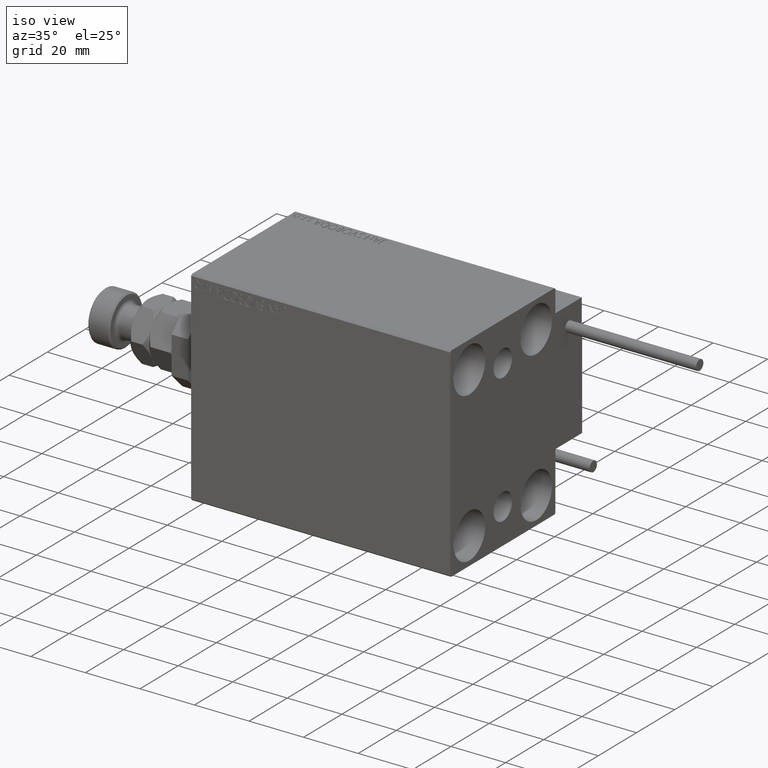
[diagram: clean part render]
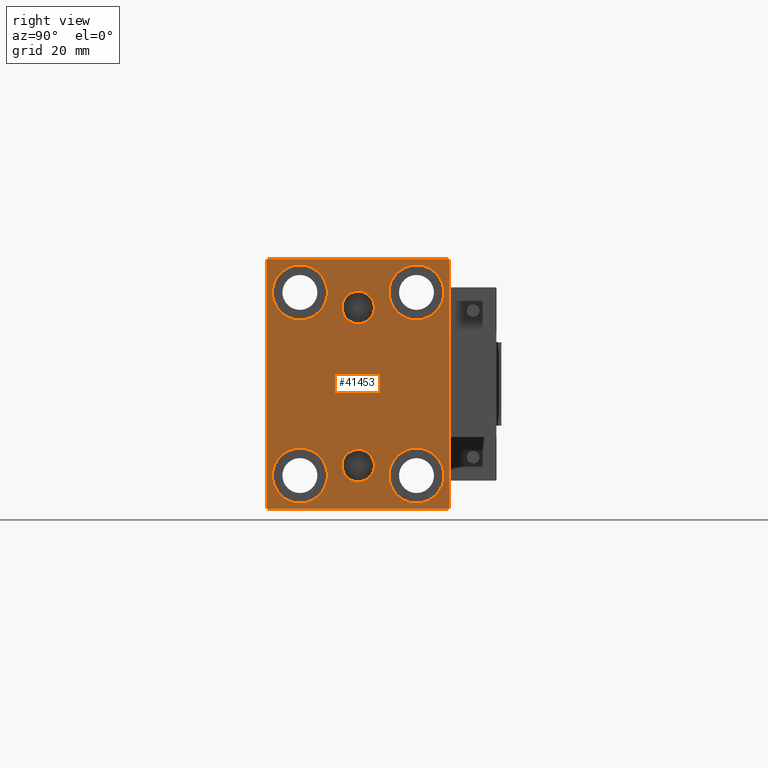
[diagram: tour spotlight — one face highlighted and labeled with its STEP entity id]
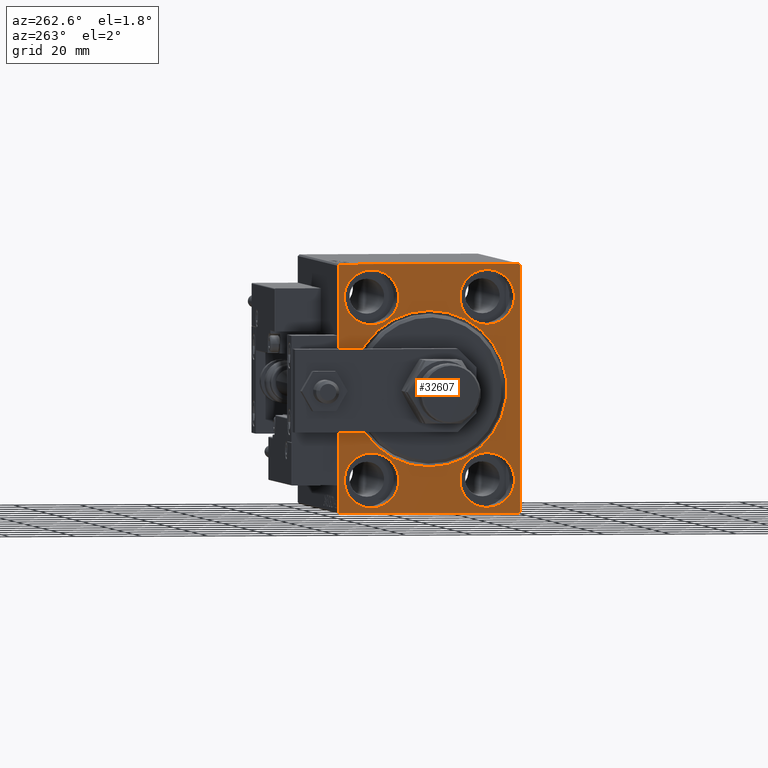
[diagram: tour spotlight — one face highlighted and labeled with its STEP entity id]
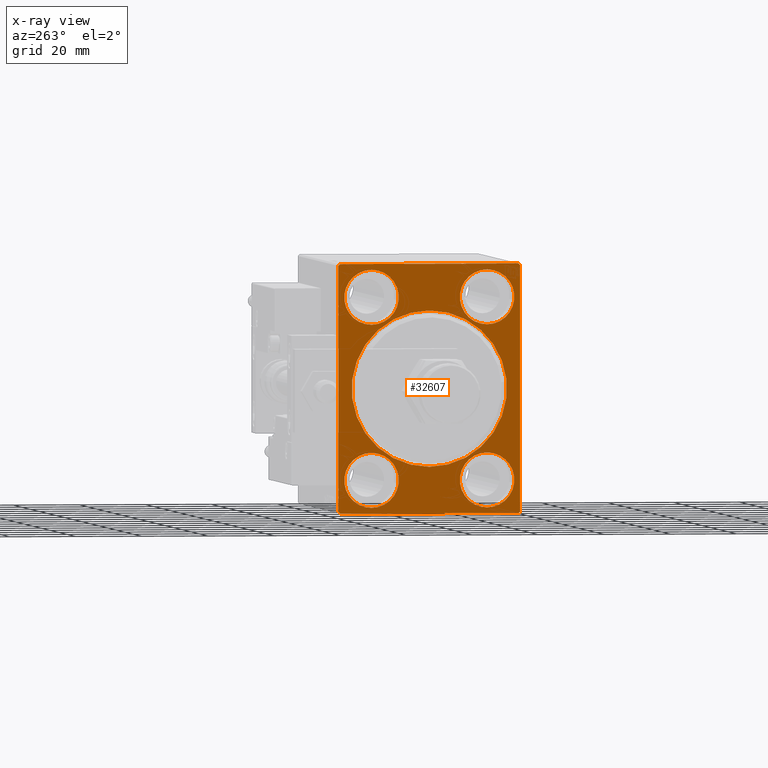
[diagram: x-ray of the same camera — body ghosted, this tour face saturated]
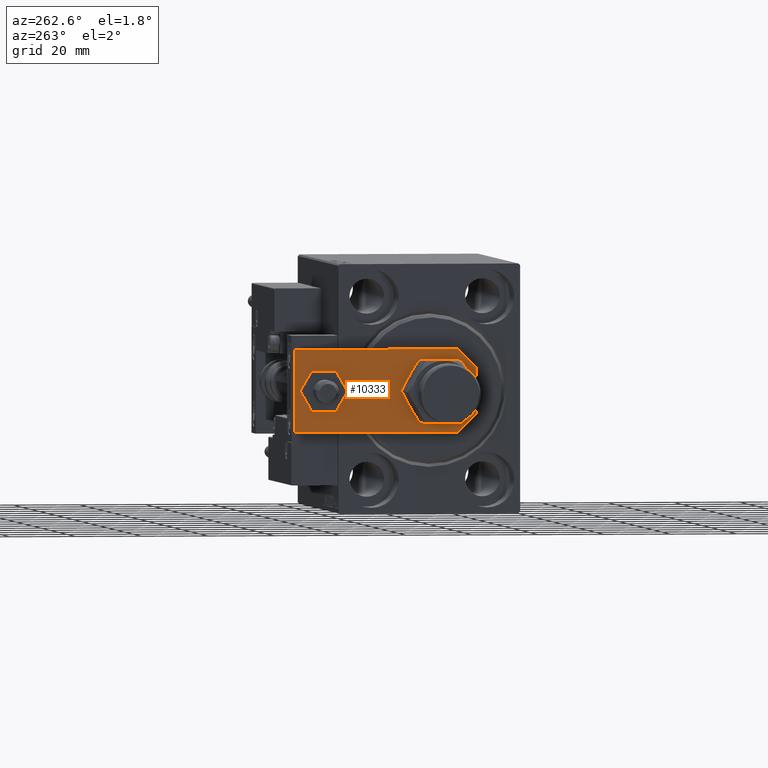
[diagram: tour spotlight — one face highlighted and labeled with its STEP entity id]
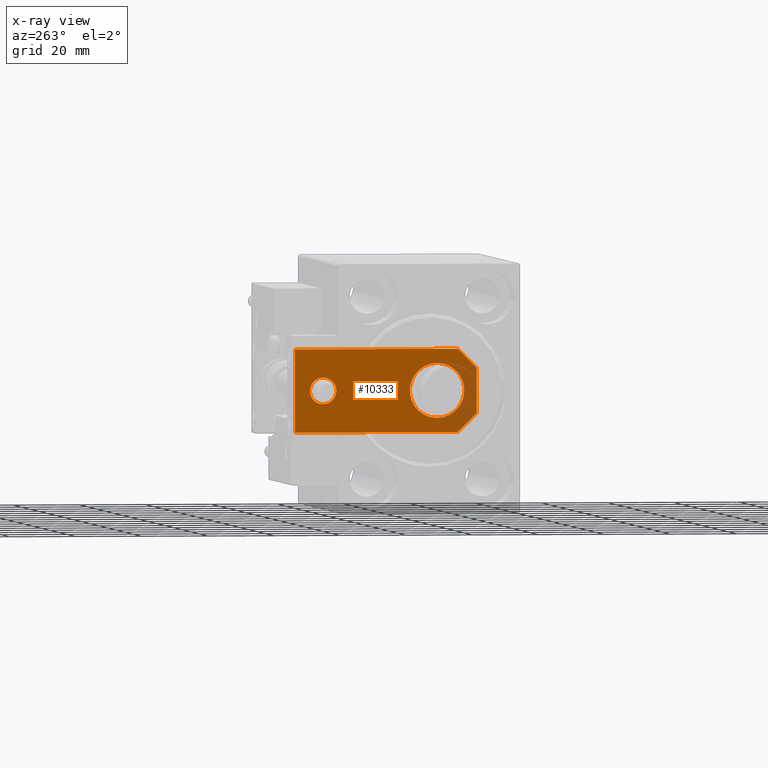
[diagram: x-ray of the same camera — body ghosted, this tour face saturated]
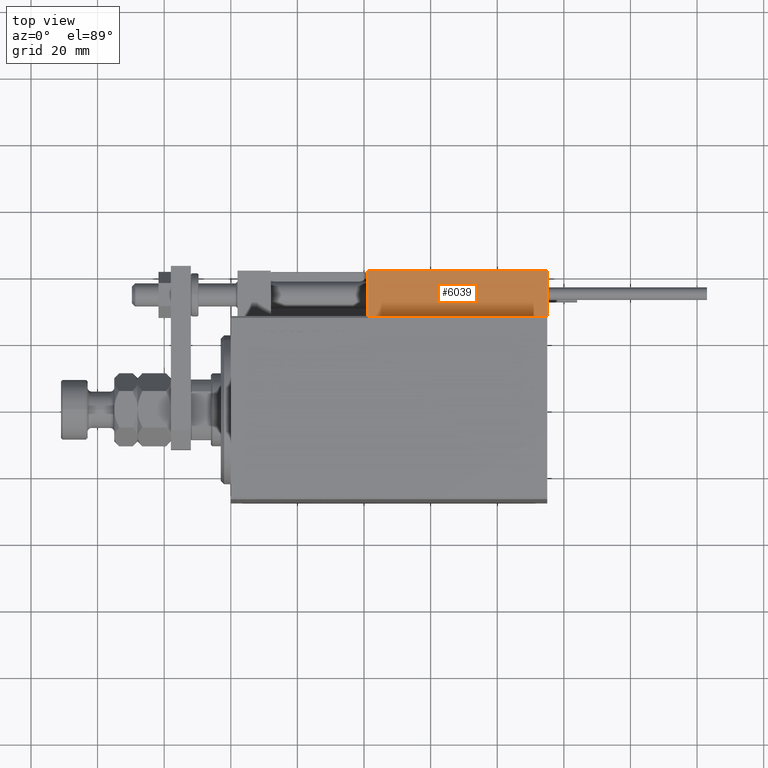
[diagram: tour spotlight — one face highlighted and labeled with its STEP entity id]
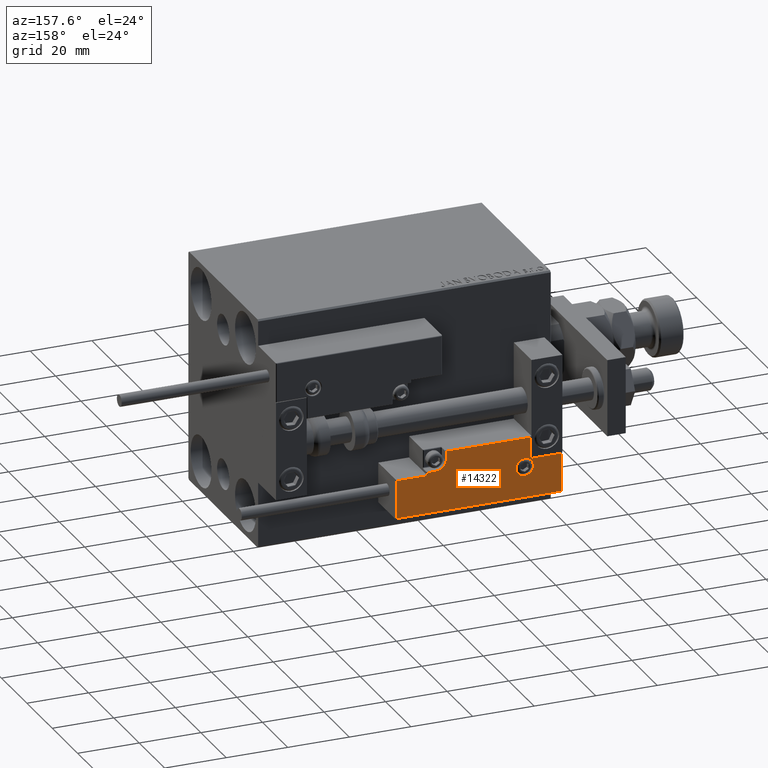
[diagram: tour spotlight — one face highlighted and labeled with its STEP entity id]
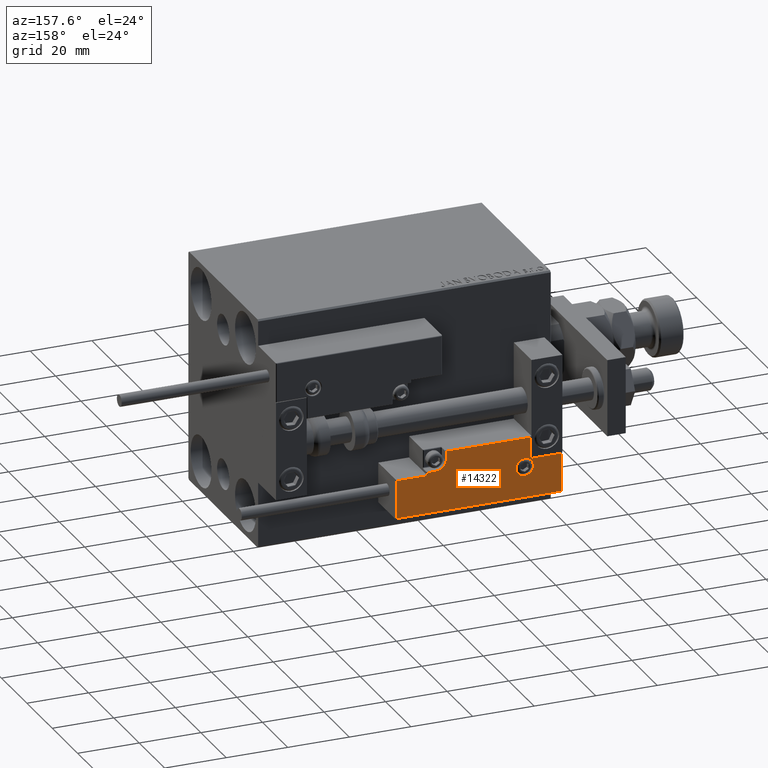
[diagram: tour spotlight — one face highlighted and labeled with its STEP entity id]
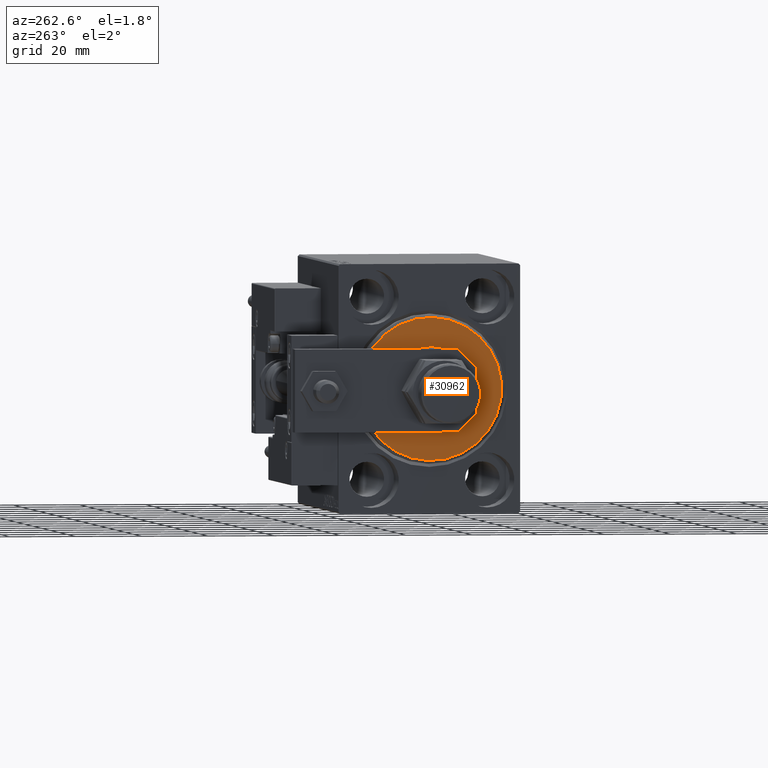
[diagram: tour spotlight — one face highlighted and labeled with its STEP entity id]
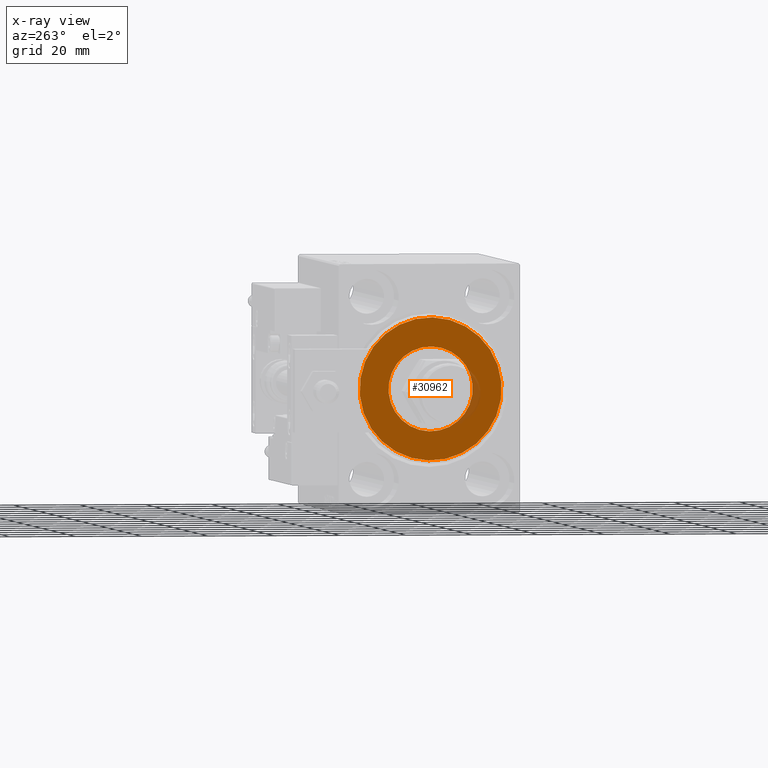
[diagram: x-ray of the same camera — body ghosted, this tour face saturated]
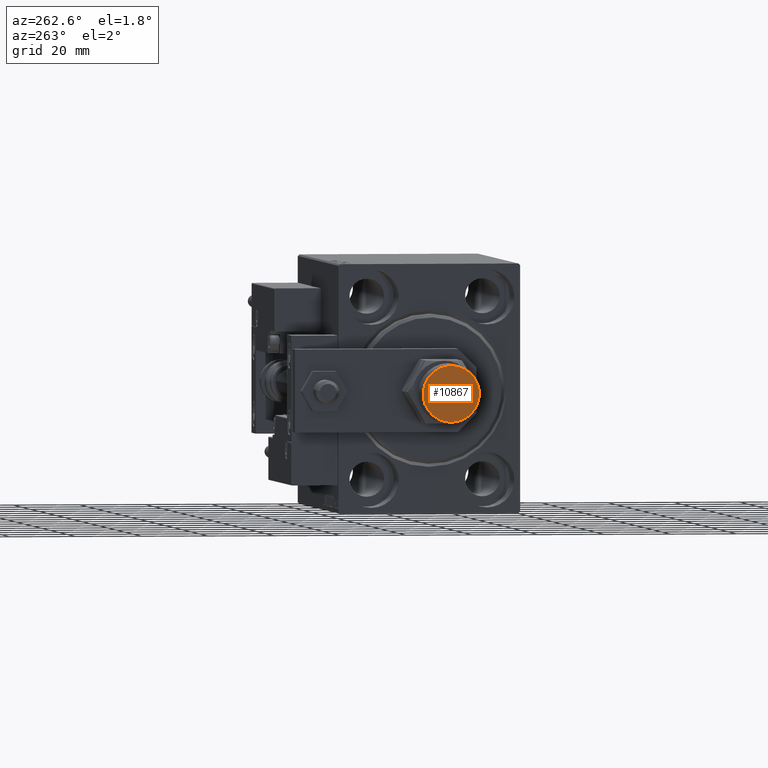
[diagram: tour spotlight — one face highlighted and labeled with its STEP entity id]
A machine part: a face-by-face anatomy tour. The part has 1324 B-rep faces; the first image is the clean iso view, then the 8 largest visible faces are spotlighted one at a time (largest first), each with its STEP entity span.

Face 1 — right view, entity #41453. In plain terms, the highlighted planar face has unit normal (1, 0, 0).
Definition (entity closure, byte-faithful):
#103 = AXIS2_PLACEMENT_3D ( 'NONE', #32068, #8612, #1332 ) ;
#889 = FACE_BOUND ( 'NONE', #8415, .T. ) ;
#1036 = ORIENTED_EDGE ( 'NONE', *, *, #3903, .T. ) ;
#1042 = AXIS2_PLACEMENT_3D ( 'NONE', #2854, #17005, #41005 ) ;
#1211 = EDGE_CURVE ( 'NONE', #40879, #34391, #5973, .T. ) ;
#1221 = CARTESIAN_POINT ( 'NONE',  ( 95.00000000000000000, -17.49999999999999645, 35.74999999999999289 ) ) ;
#1332 = DIRECTION ( 'NONE',  ( 0.000000000000000000, 0.000000000000000000, 1.000000000000000000 ) ) ;
#1799 = EDGE_CURVE ( 'NONE', #8827, #24874, #39832, .T. ) ;
#1805 = CIRCLE ( 'NONE', #103, 8.249999999999992895 ) ;
#1902 = ORIENTED_EDGE ( 'NONE', *, *, #10914, .T. ) ;
#2210 = CARTESIAN_POINT ( 'NONE',  ( 95.00000000000000000, -3.571693674697836683E-15, 23.00000000000000711 ) ) ;
#2350 = EDGE_CURVE ( 'NONE', #16811, #30978, #39306, .T. ) ;
#2812 = DIRECTION ( 'NONE',  ( -1.000000000000000000, -0.000000000000000000, -0.000000000000000000 ) ) ;
#2854 = CARTESIAN_POINT ( 'NONE',  ( 95.00000000000000000, 17.49999999999999645, -27.50000000000000355 ) ) ;
#2880 = VERTEX_POINT ( 'NONE', #24022 ) ;
#3102 = EDGE_LOOP ( 'NONE', ( #23514, #1036 ) ) ;
#3903 = EDGE_CURVE ( 'NONE', #30978, #16811, #37676, .T. ) ;
#4503 = DIRECTION ( 'NONE',  ( 1.000000000000000000, 0.000000000000000000, -0.000000000000000000 ) ) ;
#5122 = DIRECTION ( 'NONE',  ( 0.000000000000000000, 0.000000000000000000, 1.000000000000000000 ) ) ;
#5173 = CARTESIAN_POINT ( 'NONE',  ( 95.00000000000000000, -17.50000000000000355, -19.25000000000000355 ) ) ;
#5358 = VECTOR ( 'NONE', #42286, 1000.000000000000114 ) ;
#5867 = CARTESIAN_POINT ( 'NONE',  ( 95.00000000000000000, 27.50000000000000355, -37.50000000000000000 ) ) ;
#5952 = DIRECTION ( 'NONE',  ( 1.000000000000000000, 0.000000000000000000, -0.000000000000000000 ) ) ;
#5973 = CIRCLE ( 'NONE', #20088, 4.859999999999999432 ) ;
#6208 = CARTESIAN_POINT ( 'NONE',  ( 95.00000000000000000, 3.000384657911015074E-15, -24.49999999999999289 ) ) ;
#6799 = VECTOR ( 'NONE', #24474, 1000.000000000000000 ) ;
#7470 = CARTESIAN_POINT ( 'NONE',  ( 95.00000000000000000, 17.49999999999999645, -19.25000000000000355 ) ) ;
#7490 = VECTOR ( 'NONE', #8658, 1000.000000000000000 ) ;
#7611 = ORIENTED_EDGE ( 'NONE', *, *, #49979, .T. ) ;
#7773 = ORIENTED_EDGE ( 'NONE', *, *, #8868, .T. ) ;
#7853 = LINE ( 'NONE', #31315, #43065 ) ;
#7883 = AXIS2_PLACEMENT_3D ( 'NONE', #2210, #10007, #42586 ) ;
#8415 = EDGE_LOOP ( 'NONE', ( #37675, #1902 ) ) ;
#8612 = DIRECTION ( 'NONE',  ( -1.000000000000000000, -0.000000000000000000, -0.000000000000000000 ) ) ;
#8658 = DIRECTION ( 'NONE',  ( 0.000000000000000000, 0.000000000000000000, -1.000000000000000000 ) ) ;
#8692 = PLANE ( 'NONE',  #10631 ) ;
#8746 = DIRECTION ( 'NONE',  ( -1.000000000000000000, -0.000000000000000000, -0.000000000000000000 ) ) ;
#8827 = VERTEX_POINT ( 'NONE', #36775 ) ;
#8868 = EDGE_CURVE ( 'NONE', #24957, #11164, #1805, .T. ) ;
#9206 = DIRECTION ( 'NONE',  ( 1.000000000000000000, 0.000000000000000000, 0.000000000000000000 ) ) ;
#9408 = CARTESIAN_POINT ( 'NONE',  ( 95.00000000000000000, 17.50000000000000355, 35.74999999999999289 ) ) ;
#9739 = CARTESIAN_POINT ( 'NONE',  ( 95.00000000000000000, -17.50000000000000355, -35.75000000000000711 ) ) ;
#10007 = DIRECTION ( 'NONE',  ( 1.000000000000000000, 0.000000000000000000, 0.000000000000000000 ) ) ;
#10061 = CARTESIAN_POINT ( 'NONE',  ( 95.00000000000000000, -3.571693674697836683E-15, 18.14000000000000767 ) ) ;
#10235 = DIRECTION ( 'NONE',  ( 0.000000000000000000, 0.000000000000000000, -1.000000000000000000 ) ) ;
#10319 = VERTEX_POINT ( 'NONE', #43121 ) ;
#10524 = ORIENTED_EDGE ( 'NONE', *, *, #36791, .T. ) ;
#10631 = AXIS2_PLACEMENT_3D ( 'NONE', #45215, #9206, #33440 ) ;
#10789 = VECTOR ( 'NONE', #13772, 1000.000000000000114 ) ;
#10914 = EDGE_CURVE ( 'NONE', #28501, #2880, #24302, .T. ) ;
#11094 = CARTESIAN_POINT ( 'NONE',  ( 95.00000000000000000, -17.50000000000000355, -27.50000000000000355 ) ) ;
#11164 = VERTEX_POINT ( 'NONE', #9408 ) ;
#11352 = ORIENTED_EDGE ( 'NONE', *, *, #1799, .T. ) ;
#11498 = CIRCLE ( 'NONE', #24830, 4.859999999999999432 ) ;
#11677 = CARTESIAN_POINT ( 'NONE',  ( 95.00000000000000000, 3.000384657911015074E-15, -29.35999999999999233 ) ) ;
#12684 = VERTEX_POINT ( 'NONE', #50100 ) ;
#13145 = CARTESIAN_POINT ( 'NONE',  ( 95.00000000000000000, 17.50000000000000355, 19.25000000000000000 ) ) ;
#13772 = DIRECTION ( 'NONE',  ( -0.000000000000000000, 0.7071067811865474617, 0.7071067811865474617 ) ) ;
#14480 = DIRECTION ( 'NONE',  ( 0.000000000000000000, 0.000000000000000000, 1.000000000000000000 ) ) ;
#14483 = DIRECTION ( 'NONE',  ( -1.000000000000000000, -0.000000000000000000, -0.000000000000000000 ) ) ;
#14742 = VERTEX_POINT ( 'NONE', #5173 ) ;
#14748 = ORIENTED_EDGE ( 'NONE', *, *, #26056, .F. ) ;
#15356 = EDGE_CURVE ( 'NONE', #12684, #31978, #26610, .T. ) ;
#15565 = ORIENTED_EDGE ( 'NONE', *, *, #19676, .T. ) ;
#15822 = DIRECTION ( 'NONE',  ( 0.000000000000000000, 1.000000000000000000, 0.000000000000000000 ) ) ;
#16811 = VERTEX_POINT ( 'NONE', #40652 ) ;
#17005 = DIRECTION ( 'NONE',  ( -1.000000000000000000, -0.000000000000000000, -0.000000000000000000 ) ) ;
#17176 = CARTESIAN_POINT ( 'NONE',  ( 95.00000000000000000, -32.24999999999999289, -32.24999999999999289 ) ) ;
#17585 = VERTEX_POINT ( 'NONE', #34588 ) ;
#18799 = VECTOR ( 'NONE', #21755, 1000.000000000000000 ) ;
#18867 = AXIS2_PLACEMENT_3D ( 'NONE', #38900, #19062, #10235 ) ;
#19062 = DIRECTION ( 'NONE',  ( 1.000000000000000000, 0.000000000000000000, 0.000000000000000000 ) ) ;
#19480 = EDGE_CURVE ( 'NONE', #11164, #24957, #44632, .T. ) ;
#19676 = EDGE_CURVE ( 'NONE', #47027, #43441, #45524, .T. ) ;
#20088 = AXIS2_PLACEMENT_3D ( 'NONE', #40216, #4503, #14480 ) ;
#20318 = CARTESIAN_POINT ( 'NONE',  ( 95.00000000000000000, 27.49999999999999645, 37.50000000000000711 ) ) ;
#20366 = DIRECTION ( 'NONE',  ( -0.000000000000000000, -0.7071067811865622277, 0.7071067811865328068 ) ) ;
#20479 = EDGE_CURVE ( 'NONE', #2880, #28501, #20484, .T. ) ;
#20484 = CIRCLE ( 'NONE', #24512, 8.249999999999992895 ) ;
#20555 = CIRCLE ( 'NONE', #18867, 4.859999999999999432 ) ;
#20722 = ORIENTED_EDGE ( 'NONE', *, *, #19480, .T. ) ;
#20932 = VERTEX_POINT ( 'NONE', #38417 ) ;
#21007 = CARTESIAN_POINT ( 'NONE',  ( 95.00000000000000000, -17.50000000000000355, -27.50000000000000355 ) ) ;
#21449 = FACE_BOUND ( 'NONE', #3102, .T. ) ;
#21581 = CARTESIAN_POINT ( 'NONE',  ( 95.00000000000000000, -17.49999999999999645, 27.49999999999999645 ) ) ;
#21755 = DIRECTION ( 'NONE',  ( 0.000000000000000000, -9.251858538542970348E-17, 1.000000000000000000 ) ) ;
#21802 = EDGE_CURVE ( 'NONE', #30274, #10319, #44597, .T. ) ;
#21853 = ORIENTED_EDGE ( 'NONE', *, *, #21802, .F. ) ;
#22439 = EDGE_LOOP ( 'NONE', ( #32738, #37985, #7611, #10524, #11352, #44419, #15565, #48313 ) ) ;
#22864 = CARTESIAN_POINT ( 'NONE',  ( 95.00000000000000000, -17.49999999999999645, 27.49999999999999645 ) ) ;
#23417 = DIRECTION ( 'NONE',  ( -1.000000000000000000, -0.000000000000000000, -0.000000000000000000 ) ) ;
#23514 = ORIENTED_EDGE ( 'NONE', *, *, #2350, .T. ) ;
#24022 = CARTESIAN_POINT ( 'NONE',  ( 95.00000000000000000, -17.49999999999999645, 19.25000000000000000 ) ) ;
#24279 = ORIENTED_EDGE ( 'NONE', *, *, #25569, .T. ) ;
#24302 = CIRCLE ( 'NONE', #35963, 8.249999999999992895 ) ;
#24474 = DIRECTION ( 'NONE',  ( 0.000000000000000000, -1.000000000000000000, -1.261617073437677999E-16 ) ) ;
#24512 = AXIS2_PLACEMENT_3D ( 'NONE', #22864, #34861, #34100 ) ;
#24820 = EDGE_CURVE ( 'NONE', #14742, #29895, #41337, .T. ) ;
#24830 = AXIS2_PLACEMENT_3D ( 'NONE', #6208, #5952, #50288 ) ;
#24874 = VERTEX_POINT ( 'NONE', #46332 ) ;
#24957 = VERTEX_POINT ( 'NONE', #13145 ) ;
#25569 = EDGE_CURVE ( 'NONE', #29895, #14742, #33062, .T. ) ;
#26056 = EDGE_CURVE ( 'NONE', #10319, #30274, #20555, .T. ) ;
#26610 = LINE ( 'NONE', #50652, #5358 ) ;
#27013 = EDGE_CURVE ( 'NONE', #43441, #20932, #7853, .T. ) ;
#27583 = CARTESIAN_POINT ( 'NONE',  ( 95.00000000000000000, 17.50000000000000355, 27.49999999999999645 ) ) ;
#27841 = ORIENTED_EDGE ( 'NONE', *, *, #42279, .F. ) ;
#28011 = AXIS2_PLACEMENT_3D ( 'NONE', #21007, #40843, #5122 ) ;
#28501 = VERTEX_POINT ( 'NONE', #1221 ) ;
#28749 = FACE_BOUND ( 'NONE', #36834, .T. ) ;
#28844 = AXIS2_PLACEMENT_3D ( 'NONE', #11094, #14483, #33792 ) ;
#29163 = LINE ( 'NONE', #37254, #10789 ) ;
#29423 = LINE ( 'NONE', #17176, #50500 ) ;
#29873 = CARTESIAN_POINT ( 'NONE',  ( 95.00000000000000000, 27.49999999999999645, 37.00000000000004263 ) ) ;
#29895 = VERTEX_POINT ( 'NONE', #9739 ) ;
#30207 = EDGE_LOOP ( 'NONE', ( #24279, #37208 ) ) ;
#30274 = VERTEX_POINT ( 'NONE', #10061 ) ;
#30978 = VERTEX_POINT ( 'NONE', #7470 ) ;
#31315 = CARTESIAN_POINT ( 'NONE',  ( 95.00000000000000000, 32.24999999999944578, 32.25000000000078160 ) ) ;
#31861 = EDGE_CURVE ( 'NONE', #24874, #47027, #29163, .T. ) ;
#31978 = VERTEX_POINT ( 'NONE', #34858 ) ;
#32068 = CARTESIAN_POINT ( 'NONE',  ( 95.00000000000000000, 17.50000000000000355, 27.49999999999999645 ) ) ;
#32566 = DIRECTION ( 'NONE',  ( -0.000000000000000000, 0.7071067811865474617, -0.7071067811865474617 ) ) ;
#32671 = FACE_BOUND ( 'NONE', #30207, .T. ) ;
#32738 = ORIENTED_EDGE ( 'NONE', *, *, #34338, .T. ) ;
#33062 = CIRCLE ( 'NONE', #28011, 8.250000000000000000 ) ;
#33440 = DIRECTION ( 'NONE',  ( 0.000000000000000000, 0.000000000000000000, -1.000000000000000000 ) ) ;
#33792 = DIRECTION ( 'NONE',  ( 0.000000000000000000, 0.000000000000000000, 1.000000000000000000 ) ) ;
#34100 = DIRECTION ( 'NONE',  ( 0.000000000000000000, 0.000000000000000000, 1.000000000000000000 ) ) ;
#34338 = EDGE_CURVE ( 'NONE', #20932, #12684, #44859, .T. ) ;
#34391 = VERTEX_POINT ( 'NONE', #45878 ) ;
#34444 = CARTESIAN_POINT ( 'NONE',  ( 95.00000000000000000, 17.49999999999999645, -27.50000000000000355 ) ) ;
#34588 = CARTESIAN_POINT ( 'NONE',  ( 95.00000000000000000, -27.50000000000000355, -36.99999999999998579 ) ) ;
#34858 = CARTESIAN_POINT ( 'NONE',  ( 95.00000000000000000, -27.50000000000000355, 37.00000000000001421 ) ) ;
#34861 = DIRECTION ( 'NONE',  ( -1.000000000000000000, -0.000000000000000000, -0.000000000000000000 ) ) ;
#34874 = CARTESIAN_POINT ( 'NONE',  ( 95.00000000000000000, -27.50000000000000355, -37.50000000000000000 ) ) ;
#35253 = ORIENTED_EDGE ( 'NONE', *, *, #1211, .F. ) ;
#35963 = AXIS2_PLACEMENT_3D ( 'NONE', #21581, #2812, #45853 ) ;
#36775 = CARTESIAN_POINT ( 'NONE',  ( 95.00000000000000000, -26.99999999999998934, -37.50000000000000000 ) ) ;
#36791 = EDGE_CURVE ( 'NONE', #17585, #8827, #29423, .T. ) ;
#36834 = EDGE_LOOP ( 'NONE', ( #7773, #20722 ) ) ;
#37208 = ORIENTED_EDGE ( 'NONE', *, *, #24820, .T. ) ;
#37254 = CARTESIAN_POINT ( 'NONE',  ( 95.00000000000000000, 32.25000000000000000, -32.25000000000000000 ) ) ;
#37599 = VECTOR ( 'NONE', #15822, 1000.000000000000000 ) ;
#37675 = ORIENTED_EDGE ( 'NONE', *, *, #20479, .T. ) ;
#37676 = CIRCLE ( 'NONE', #46039, 8.250000000000000000 ) ;
#37947 = AXIS2_PLACEMENT_3D ( 'NONE', #27583, #23417, #47715 ) ;
#37985 = ORIENTED_EDGE ( 'NONE', *, *, #15356, .T. ) ;
#38417 = CARTESIAN_POINT ( 'NONE',  ( 95.00000000000000000, 27.00000000000001066, 37.50000000000000711 ) ) ;
#38900 = CARTESIAN_POINT ( 'NONE',  ( 95.00000000000000000, -3.571693674697836683E-15, 23.00000000000000711 ) ) ;
#39306 = CIRCLE ( 'NONE', #1042, 8.250000000000000000 ) ;
#39832 = LINE ( 'NONE', #34874, #37599 ) ;
#40010 = EDGE_LOOP ( 'NONE', ( #21853, #14748 ) ) ;
#40216 = CARTESIAN_POINT ( 'NONE',  ( 95.00000000000000000, 3.000384657911015074E-15, -24.49999999999999289 ) ) ;
#40652 = CARTESIAN_POINT ( 'NONE',  ( 95.00000000000000000, 17.49999999999999645, -35.75000000000000711 ) ) ;
#40843 = DIRECTION ( 'NONE',  ( -1.000000000000000000, -0.000000000000000000, -0.000000000000000000 ) ) ;
#40879 = VERTEX_POINT ( 'NONE', #11677 ) ;
#41005 = DIRECTION ( 'NONE',  ( 0.000000000000000000, 0.000000000000000000, 1.000000000000000000 ) ) ;
#41337 = CIRCLE ( 'NONE', #28844, 8.250000000000000000 ) ;
#41453 = ADVANCED_FACE ( 'NONE', ( #44437, #44696, #21449, #889, #28749, #32671, #44959 ), #8692, .T. ) ;
#42279 = EDGE_CURVE ( 'NONE', #34391, #40879, #11498, .T. ) ;
#42286 = DIRECTION ( 'NONE',  ( 0.000000000000000000, -0.7071067811865376918, -0.7071067811865573427 ) ) ;
#42586 = DIRECTION ( 'NONE',  ( 0.000000000000000000, 0.000000000000000000, -1.000000000000000000 ) ) ;
#43065 = VECTOR ( 'NONE', #20366, 1000.000000000000000 ) ;
#43121 = CARTESIAN_POINT ( 'NONE',  ( 95.00000000000000000, -2.976515330312223406E-15, 27.86000000000000654 ) ) ;
#43441 = VERTEX_POINT ( 'NONE', #29873 ) ;
#44419 = ORIENTED_EDGE ( 'NONE', *, *, #31861, .T. ) ;
#44437 = FACE_BOUND ( 'NONE', #40010, .T. ) ;
#44597 = CIRCLE ( 'NONE', #7883, 4.859999999999999432 ) ;
#44632 = CIRCLE ( 'NONE', #37947, 8.249999999999992895 ) ;
#44661 = LINE ( 'NONE', #47796, #7490 ) ;
#44696 = FACE_BOUND ( 'NONE', #47813, .T. ) ;
#44859 = LINE ( 'NONE', #20318, #6799 ) ;
#44959 = FACE_OUTER_BOUND ( 'NONE', #22439, .T. ) ;
#44971 = CARTESIAN_POINT ( 'NONE',  ( 95.00000000000000000, 27.50000000000000355, -37.00000000000000000 ) ) ;
#45215 = CARTESIAN_POINT ( 'NONE',  ( 95.00000000000000000, 0.000000000000000000, 0.000000000000000000 ) ) ;
#45524 = LINE ( 'NONE', #5867, #18799 ) ;
#45853 = DIRECTION ( 'NONE',  ( 0.000000000000000000, 0.000000000000000000, 1.000000000000000000 ) ) ;
#45878 = CARTESIAN_POINT ( 'NONE',  ( 95.00000000000000000, 3.595563002296627957E-15, -19.63999999999999346 ) ) ;
#46039 = AXIS2_PLACEMENT_3D ( 'NONE', #34444, #8746, #48673 ) ;
#46332 = CARTESIAN_POINT ( 'NONE',  ( 95.00000000000000000, 27.00000000000000355, -37.50000000000000000 ) ) ;
#47027 = VERTEX_POINT ( 'NONE', #44971 ) ;
#47715 = DIRECTION ( 'NONE',  ( 0.000000000000000000, 0.000000000000000000, 1.000000000000000000 ) ) ;
#47796 = CARTESIAN_POINT ( 'NONE',  ( 95.00000000000000000, -27.50000000000000355, 37.50000000000000000 ) ) ;
#47813 = EDGE_LOOP ( 'NONE', ( #35253, #27841 ) ) ;
#48313 = ORIENTED_EDGE ( 'NONE', *, *, #27013, .T. ) ;
#48673 = DIRECTION ( 'NONE',  ( 0.000000000000000000, 0.000000000000000000, 1.000000000000000000 ) ) ;
#49979 = EDGE_CURVE ( 'NONE', #31978, #17585, #44661, .T. ) ;
#50100 = CARTESIAN_POINT ( 'NONE',  ( 95.00000000000000000, -27.00000000000003197, 37.50000000000000000 ) ) ;
#50288 = DIRECTION ( 'NONE',  ( 0.000000000000000000, 0.000000000000000000, 1.000000000000000000 ) ) ;
#50500 = VECTOR ( 'NONE', #32566, 1000.000000000000114 ) ;
#50652 = CARTESIAN_POINT ( 'NONE',  ( 95.00000000000000000, -32.25000000000039080, 32.24999999999949551 ) ) ;

Face 2 — auxiliary view, entity #32607. An x-ray twin of the same camera follows (body ghosted, this face saturated) — the face is partly hidden behind the body. In plain terms, the highlighted planar face has unit normal (1, 0, 0).
Definition (entity closure, byte-faithful):
#154 = ORIENTED_EDGE ( 'NONE', *, *, #34957, .F. ) ;
#1045 = ORIENTED_EDGE ( 'NONE', *, *, #33327, .T. ) ;
#1096 = EDGE_CURVE ( 'NONE', #14513, #44097, #31848, .T. ) ;
#1484 = DIRECTION ( 'NONE',  ( 0.000000000000000000, -9.251858538542970348E-17, 1.000000000000000000 ) ) ;
#1658 = CARTESIAN_POINT ( 'NONE',  ( 0.000000000000000000, 0.000000000000000000, 23.50000000000000355 ) ) ;
#1903 = AXIS2_PLACEMENT_3D ( 'NONE', #9093, #24972, #5192 ) ;
#2435 = CARTESIAN_POINT ( 'NONE',  ( 0.000000000000000000, -17.50000000000000355, -19.25000000000000355 ) ) ;
#3030 = AXIS2_PLACEMENT_3D ( 'NONE', #20763, #5397, #5647 ) ;
#3566 = DIRECTION ( 'NONE',  ( 0.000000000000000000, -1.000000000000000000, -1.261617073437677999E-16 ) ) ;
#5192 = DIRECTION ( 'NONE',  ( 0.000000000000000000, 0.000000000000000000, -1.000000000000000000 ) ) ;
#5295 = EDGE_LOOP ( 'NONE', ( #38270, #22156 ) ) ;
#5397 = DIRECTION ( 'NONE',  ( -1.000000000000000000, 0.000000000000000000, 0.000000000000000000 ) ) ;
#5647 = DIRECTION ( 'NONE',  ( 0.000000000000000000, 0.000000000000000000, 1.000000000000000000 ) ) ;
#5844 = DIRECTION ( 'NONE',  ( -1.000000000000000000, 0.000000000000000000, 0.000000000000000000 ) ) ;
#6570 = VERTEX_POINT ( 'NONE', #20339 ) ;
#6957 = CARTESIAN_POINT ( 'NONE',  ( 0.000000000000000000, 27.49999999999999645, 37.50000000000000711 ) ) ;
#7270 = CIRCLE ( 'NONE', #51402, 8.250000000000000000 ) ;
#7859 = VERTEX_POINT ( 'NONE', #37230 ) ;
#8128 = DIRECTION ( 'NONE',  ( -0.000000000000000000, -0.7071067811865474617, 0.7071067811865474617 ) ) ;
#8153 = DIRECTION ( 'NONE',  ( 0.000000000000000000, 0.000000000000000000, 1.000000000000000000 ) ) ;
#8424 = EDGE_CURVE ( 'NONE', #16991, #12395, #14191, .T. ) ;
#8643 = DIRECTION ( 'NONE',  ( -1.000000000000000000, 0.000000000000000000, 0.000000000000000000 ) ) ;
#8878 = AXIS2_PLACEMENT_3D ( 'NONE', #9568, #9822, #25453 ) ;
#8924 = AXIS2_PLACEMENT_3D ( 'NONE', #27950, #15188, #8153 ) ;
#8925 = CARTESIAN_POINT ( 'NONE',  ( 0.000000000000000000, -17.50000000000000355, -35.75000000000000711 ) ) ;
#9055 = AXIS2_PLACEMENT_3D ( 'NONE', #30811, #46754, #11016 ) ;
#9093 = CARTESIAN_POINT ( 'NONE',  ( 0.000000000000000000, 0.000000000000000000, 0.000000000000000000 ) ) ;
#9345 = EDGE_LOOP ( 'NONE', ( #26038, #18156 ) ) ;
#9464 = ORIENTED_EDGE ( 'NONE', *, *, #22590, .F. ) ;
#9498 = DIRECTION ( 'NONE',  ( 0.000000000000000000, 0.000000000000000000, 1.000000000000000000 ) ) ;
#9568 = CARTESIAN_POINT ( 'NONE',  ( 0.000000000000000000, -17.50000000000000355, -27.50000000000000355 ) ) ;
#9622 = VECTOR ( 'NONE', #1484, 1000.000000000000000 ) ;
#9748 = VERTEX_POINT ( 'NONE', #40118 ) ;
#9822 = DIRECTION ( 'NONE',  ( -1.000000000000000000, 0.000000000000000000, 0.000000000000000000 ) ) ;
#9972 = EDGE_CURVE ( 'NONE', #7859, #6570, #14763, .T. ) ;
#10538 = CIRCLE ( 'NONE', #8878, 8.250000000000000000 ) ;
#11016 = DIRECTION ( 'NONE',  ( 0.000000000000000000, 0.000000000000000000, -1.000000000000000000 ) ) ;
#11398 = AXIS2_PLACEMENT_3D ( 'NONE', #28006, #44214, #16288 ) ;
#11534 = EDGE_CURVE ( 'NONE', #12395, #16991, #25154, .T. ) ;
#11722 = EDGE_LOOP ( 'NONE', ( #24794, #35155 ) ) ;
#11847 = CARTESIAN_POINT ( 'NONE',  ( 0.000000000000000000, -27.50000000000000355, 37.00000000000001421 ) ) ;
#12395 = VERTEX_POINT ( 'NONE', #39935 ) ;
#12730 = CARTESIAN_POINT ( 'NONE',  ( 0.000000000000000000, 27.50000000000000355, -37.00000000000000000 ) ) ;
#12778 = EDGE_LOOP ( 'NONE', ( #25780, #27399 ) ) ;
#14121 = CARTESIAN_POINT ( 'NONE',  ( 0.000000000000000000, 17.49999999999999645, -27.50000000000000355 ) ) ;
#14191 = CIRCLE ( 'NONE', #43332, 23.50000000000000355 ) ;
#14513 = VERTEX_POINT ( 'NONE', #37799 ) ;
#14626 = DIRECTION ( 'NONE',  ( -1.000000000000000000, 0.000000000000000000, 0.000000000000000000 ) ) ;
#14693 = VERTEX_POINT ( 'NONE', #39846 ) ;
#14763 = LINE ( 'NONE', #6957, #30928 ) ;
#14907 = FACE_BOUND ( 'NONE', #12778, .T. ) ;
#15188 = DIRECTION ( 'NONE',  ( -1.000000000000000000, 0.000000000000000000, 0.000000000000000000 ) ) ;
#15441 = VERTEX_POINT ( 'NONE', #37864 ) ;
#16288 = DIRECTION ( 'NONE',  ( 0.000000000000000000, 0.000000000000000000, 1.000000000000000000 ) ) ;
#16991 = VERTEX_POINT ( 'NONE', #1658 ) ;
#18156 = ORIENTED_EDGE ( 'NONE', *, *, #11534, .T. ) ;
#18243 = VERTEX_POINT ( 'NONE', #50661 ) ;
#18355 = EDGE_CURVE ( 'NONE', #15441, #45367, #23726, .T. ) ;
#18584 = FACE_BOUND ( 'NONE', #11722, .T. ) ;
#18834 = FACE_OUTER_BOUND ( 'NONE', #47293, .T. ) ;
#19511 = ORIENTED_EDGE ( 'NONE', *, *, #41103, .T. ) ;
#19563 = AXIS2_PLACEMENT_3D ( 'NONE', #23730, #47766, #27376 ) ;
#20339 = CARTESIAN_POINT ( 'NONE',  ( 0.000000000000000000, -27.00000000000003197, 37.50000000000000000 ) ) ;
#20369 = DIRECTION ( 'NONE',  ( 0.000000000000000000, 0.000000000000000000, 1.000000000000000000 ) ) ;
#20763 = CARTESIAN_POINT ( 'NONE',  ( 0.000000000000000000, -17.50000000000000355, -27.50000000000000355 ) ) ;
#21271 = LINE ( 'NONE', #37698, #9622 ) ;
#21701 = ORIENTED_EDGE ( 'NONE', *, *, #48308, .T. ) ;
#21816 = VERTEX_POINT ( 'NONE', #34995 ) ;
#21982 = LINE ( 'NONE', #25113, #23265 ) ;
#22156 = ORIENTED_EDGE ( 'NONE', *, *, #40367, .F. ) ;
#22590 = EDGE_CURVE ( 'NONE', #18243, #21816, #21271, .T. ) ;
#23265 = VECTOR ( 'NONE', #37136, 1000.000000000000114 ) ;
#23726 = CIRCLE ( 'NONE', #19563, 8.250000000000000000 ) ;
#23730 = CARTESIAN_POINT ( 'NONE',  ( 0.000000000000000000, 17.49999999999999645, -27.50000000000000355 ) ) ;
#23919 = DIRECTION ( 'NONE',  ( 0.000000000000000000, -0.7071067811865474617, -0.7071067811865474617 ) ) ;
#23932 = CARTESIAN_POINT ( 'NONE',  ( 0.000000000000000000, 27.00000000000000355, -37.50000000000000000 ) ) ;
#23962 = VERTEX_POINT ( 'NONE', #39952 ) ;
#24153 = VECTOR ( 'NONE', #23919, 1000.000000000000114 ) ;
#24378 = ORIENTED_EDGE ( 'NONE', *, *, #39370, .F. ) ;
#24425 = ORIENTED_EDGE ( 'NONE', *, *, #9972, .F. ) ;
#24445 = LINE ( 'NONE', #44829, #44806 ) ;
#24773 = EDGE_CURVE ( 'NONE', #50861, #46306, #10538, .T. ) ;
#24794 = ORIENTED_EDGE ( 'NONE', *, *, #37088, .F. ) ;
#24972 = DIRECTION ( 'NONE',  ( 1.000000000000000000, 0.000000000000000000, 0.000000000000000000 ) ) ;
#25113 = CARTESIAN_POINT ( 'NONE',  ( 0.000000000000000000, -27.50000000000000355, 37.00000000000001421 ) ) ;
#25154 = CIRCLE ( 'NONE', #1903, 23.50000000000000355 ) ;
#25453 = DIRECTION ( 'NONE',  ( 0.000000000000000000, 0.000000000000000000, 1.000000000000000000 ) ) ;
#25780 = ORIENTED_EDGE ( 'NONE', *, *, #33963, .F. ) ;
#25822 = AXIS2_PLACEMENT_3D ( 'NONE', #44385, #8643, #20369 ) ;
#26038 = ORIENTED_EDGE ( 'NONE', *, *, #8424, .T. ) ;
#26779 = CARTESIAN_POINT ( 'NONE',  ( 0.000000000000000000, -27.50000000000000355, -37.50000000000000000 ) ) ;
#27376 = DIRECTION ( 'NONE',  ( 0.000000000000000000, 0.000000000000000000, 1.000000000000000000 ) ) ;
#27399 = ORIENTED_EDGE ( 'NONE', *, *, #40191, .F. ) ;
#27775 = CARTESIAN_POINT ( 'NONE',  ( 0.000000000000000000, 17.50000000000000355, 35.74999999999999289 ) ) ;
#27950 = CARTESIAN_POINT ( 'NONE',  ( 0.000000000000000000, 17.50000000000000355, 27.49999999999999645 ) ) ;
#28006 = CARTESIAN_POINT ( 'NONE',  ( 0.000000000000000000, -17.49999999999999645, 27.49999999999999645 ) ) ;
#28096 = VERTEX_POINT ( 'NONE', #27775 ) ;
#28525 = DIRECTION ( 'NONE',  ( 0.000000000000000000, 0.000000000000000000, -1.000000000000000000 ) ) ;
#28729 = CARTESIAN_POINT ( 'NONE',  ( 0.000000000000000000, 0.000000000000000000, 0.000000000000000000 ) ) ;
#29696 = CIRCLE ( 'NONE', #38850, 8.249999999999992895 ) ;
#30776 = VECTOR ( 'NONE', #28525, 1000.000000000000000 ) ;
#30811 = CARTESIAN_POINT ( 'NONE',  ( 0.000000000000000000, 0.000000000000000000, 0.000000000000000000 ) ) ;
#30928 = VECTOR ( 'NONE', #3566, 1000.000000000000000 ) ;
#30954 = DIRECTION ( 'NONE',  ( 0.000000000000000000, 1.000000000000000000, 0.000000000000000000 ) ) ;
#31152 = ORIENTED_EDGE ( 'NONE', *, *, #1096, .T. ) ;
#31756 = LINE ( 'NONE', #12730, #24153 ) ;
#31848 = LINE ( 'NONE', #43602, #48473 ) ;
#32192 = LINE ( 'NONE', #48921, #30776 ) ;
#32607 = ADVANCED_FACE ( 'NONE', ( #46508, #49916, #50928, #14907, #18584, #18834 ), #42315, .F. ) ;
#33212 = CARTESIAN_POINT ( 'NONE',  ( 0.000000000000000000, -17.49999999999999645, 27.49999999999999645 ) ) ;
#33327 = EDGE_CURVE ( 'NONE', #34850, #6570, #21982, .T. ) ;
#33924 = CIRCLE ( 'NONE', #8924, 8.249999999999992895 ) ;
#33963 = EDGE_CURVE ( 'NONE', #28096, #23962, #44184, .T. ) ;
#34850 = VERTEX_POINT ( 'NONE', #11847 ) ;
#34957 = EDGE_CURVE ( 'NONE', #9748, #14693, #29696, .T. ) ;
#34995 = CARTESIAN_POINT ( 'NONE',  ( 0.000000000000000000, 27.49999999999999645, 37.00000000000004263 ) ) ;
#35155 = ORIENTED_EDGE ( 'NONE', *, *, #24773, .F. ) ;
#36977 = DIRECTION ( 'NONE',  ( -0.000000000000000000, 0.7071067811865622277, -0.7071067811865328068 ) ) ;
#37088 = EDGE_CURVE ( 'NONE', #46306, #50861, #47999, .T. ) ;
#37136 = DIRECTION ( 'NONE',  ( -0.000000000000000000, 0.7071067811865376918, 0.7071067811865573427 ) ) ;
#37230 = CARTESIAN_POINT ( 'NONE',  ( 0.000000000000000000, 27.00000000000001066, 37.50000000000000711 ) ) ;
#37698 = CARTESIAN_POINT ( 'NONE',  ( 0.000000000000000000, 27.50000000000000355, -37.50000000000000000 ) ) ;
#37799 = CARTESIAN_POINT ( 'NONE',  ( 0.000000000000000000, -26.99999999999998934, -37.50000000000000000 ) ) ;
#37863 = DIRECTION ( 'NONE',  ( 0.000000000000000000, 0.000000000000000000, 1.000000000000000000 ) ) ;
#37864 = CARTESIAN_POINT ( 'NONE',  ( 0.000000000000000000, 17.49999999999999645, -19.25000000000000355 ) ) ;
#37929 = CARTESIAN_POINT ( 'NONE',  ( 0.000000000000000000, 17.49999999999999645, -35.75000000000000711 ) ) ;
#38270 = ORIENTED_EDGE ( 'NONE', *, *, #18355, .F. ) ;
#38850 = AXIS2_PLACEMENT_3D ( 'NONE', #33212, #5844, #9498 ) ;
#39370 = EDGE_CURVE ( 'NONE', #14693, #9748, #45582, .T. ) ;
#39846 = CARTESIAN_POINT ( 'NONE',  ( 0.000000000000000000, -17.49999999999999645, 19.25000000000000000 ) ) ;
#39935 = CARTESIAN_POINT ( 'NONE',  ( 0.000000000000000000, 2.877919977996280715E-15, -23.50000000000000355 ) ) ;
#39952 = CARTESIAN_POINT ( 'NONE',  ( 0.000000000000000000, 17.50000000000000355, 19.25000000000000000 ) ) ;
#40118 = CARTESIAN_POINT ( 'NONE',  ( 0.000000000000000000, -17.49999999999999645, 35.74999999999999289 ) ) ;
#40191 = EDGE_CURVE ( 'NONE', #23962, #28096, #33924, .T. ) ;
#40367 = EDGE_CURVE ( 'NONE', #45367, #15441, #7270, .T. ) ;
#41103 = EDGE_CURVE ( 'NONE', #7859, #21816, #24445, .T. ) ;
#41901 = ORIENTED_EDGE ( 'NONE', *, *, #50486, .F. ) ;
#42315 = PLANE ( 'NONE',  #9055 ) ;
#42460 = LINE ( 'NONE', #26779, #43195 ) ;
#43195 = VECTOR ( 'NONE', #30954, 1000.000000000000000 ) ;
#43201 = EDGE_CURVE ( 'NONE', #14513, #46781, #42460, .T. ) ;
#43332 = AXIS2_PLACEMENT_3D ( 'NONE', #28729, #44939, #44678 ) ;
#43602 = CARTESIAN_POINT ( 'NONE',  ( 0.000000000000000000, -26.99999999999998934, -37.50000000000000000 ) ) ;
#44097 = VERTEX_POINT ( 'NONE', #49243 ) ;
#44184 = CIRCLE ( 'NONE', #25822, 8.249999999999992895 ) ;
#44214 = DIRECTION ( 'NONE',  ( -1.000000000000000000, 0.000000000000000000, 0.000000000000000000 ) ) ;
#44385 = CARTESIAN_POINT ( 'NONE',  ( 0.000000000000000000, 17.50000000000000355, 27.49999999999999645 ) ) ;
#44678 = DIRECTION ( 'NONE',  ( 0.000000000000000000, 0.000000000000000000, -1.000000000000000000 ) ) ;
#44806 = VECTOR ( 'NONE', #36977, 1000.000000000000000 ) ;
#44829 = CARTESIAN_POINT ( 'NONE',  ( 0.000000000000000000, 27.00000000000001066, 37.50000000000000711 ) ) ;
#44939 = DIRECTION ( 'NONE',  ( 1.000000000000000000, 0.000000000000000000, 0.000000000000000000 ) ) ;
#45367 = VERTEX_POINT ( 'NONE', #37929 ) ;
#45582 = CIRCLE ( 'NONE', #11398, 8.249999999999992895 ) ;
#46306 = VERTEX_POINT ( 'NONE', #2435 ) ;
#46508 = FACE_BOUND ( 'NONE', #9345, .T. ) ;
#46754 = DIRECTION ( 'NONE',  ( 1.000000000000000000, 0.000000000000000000, 0.000000000000000000 ) ) ;
#46781 = VERTEX_POINT ( 'NONE', #23932 ) ;
#47293 = EDGE_LOOP ( 'NONE', ( #41901, #1045, #24425, #19511, #9464, #21701, #50383, #31152 ) ) ;
#47766 = DIRECTION ( 'NONE',  ( -1.000000000000000000, 0.000000000000000000, 0.000000000000000000 ) ) ;
#47999 = CIRCLE ( 'NONE', #3030, 8.250000000000000000 ) ;
#48308 = EDGE_CURVE ( 'NONE', #18243, #46781, #31756, .T. ) ;
#48473 = VECTOR ( 'NONE', #8128, 1000.000000000000114 ) ;
#48921 = CARTESIAN_POINT ( 'NONE',  ( 0.000000000000000000, -27.50000000000000355, 37.50000000000000000 ) ) ;
#49243 = CARTESIAN_POINT ( 'NONE',  ( 0.000000000000000000, -27.50000000000000355, -36.99999999999998579 ) ) ;
#49916 = FACE_BOUND ( 'NONE', #5295, .T. ) ;
#50138 = EDGE_LOOP ( 'NONE', ( #154, #24378 ) ) ;
#50383 = ORIENTED_EDGE ( 'NONE', *, *, #43201, .F. ) ;
#50486 = EDGE_CURVE ( 'NONE', #34850, #44097, #32192, .T. ) ;
#50661 = CARTESIAN_POINT ( 'NONE',  ( 0.000000000000000000, 27.50000000000000355, -37.00000000000000000 ) ) ;
#50861 = VERTEX_POINT ( 'NONE', #8925 ) ;
#50928 = FACE_BOUND ( 'NONE', #50138, .T. ) ;
#51402 = AXIS2_PLACEMENT_3D ( 'NONE', #14121, #14626, #37863 ) ;

Face 3 — auxiliary view, entity #10333. An x-ray twin of the same camera follows (body ghosted, this face saturated) — the face is partly hidden behind the body. In plain terms, the highlighted planar face has unit normal (-1, 0, 0).
Definition (entity closure, byte-faithful):
#747 = DIRECTION ( 'NONE',  ( 1.000000000000000000, 0.000000000000000000, 0.000000000000000000 ) ) ;
#958 = VERTEX_POINT ( 'NONE', #33029 ) ;
#2144 = ORIENTED_EDGE ( 'NONE', *, *, #10079, .T. ) ;
#2152 = ORIENTED_EDGE ( 'NONE', *, *, #6838, .T. ) ;
#3234 = AXIS2_PLACEMENT_3D ( 'NONE', #22872, #26524, #42709 ) ;
#3579 = DIRECTION ( 'NONE',  ( 0.7071067811865467956, -0.7071067811865483499, 0.000000000000000000 ) ) ;
#4209 = VERTEX_POINT ( 'NONE', #33625 ) ;
#4546 = CARTESIAN_POINT ( 'NONE',  ( -6.840000000000012292, 4.814824860968089633E-32, 6.000000000000000000 ) ) ;
#4917 = VERTEX_POINT ( 'NONE', #31362 ) ;
#6838 = EDGE_CURVE ( 'NONE', #46216, #4209, #47952, .T. ) ;
#6850 = EDGE_CURVE ( 'NONE', #24882, #13501, #28699, .T. ) ;
#7354 = VERTEX_POINT ( 'NONE', #29824 ) ;
#8113 = EDGE_CURVE ( 'NONE', #4209, #47386, #23342, .T. ) ;
#9932 = CARTESIAN_POINT ( 'NONE',  ( 4.000000000000000888, 46.50000000000000000, 6.000000000000000000 ) ) ;
#10079 = EDGE_CURVE ( 'NONE', #958, #17392, #11620, .T. ) ;
#10333 = ADVANCED_FACE ( 'NONE', ( #46547, #38955, #43377 ), #38710, .T. ) ;
#11054 = DIRECTION ( 'NONE',  ( -0.000000000000000000, 0.000000000000000000, 1.000000000000000000 ) ) ;
#11119 = CARTESIAN_POINT ( 'NONE',  ( 3.419999999999990603, -3.419999999999999485, 6.000000000000000000 ) ) ;
#11620 = LINE ( 'NONE', #27506, #50952 ) ;
#13294 = VERTEX_POINT ( 'NONE', #49908 ) ;
#13501 = VERTEX_POINT ( 'NONE', #9932 ) ;
#14228 = CARTESIAN_POINT ( 'NONE',  ( -4.000000000000000888, 46.50000000000000000, 6.000000000000000000 ) ) ;
#15364 = AXIS2_PLACEMENT_3D ( 'NONE', #44286, #48478, #20276 ) ;
#16377 = CARTESIAN_POINT ( 'NONE',  ( -12.49999999999999822, 55.00000000000000000, 6.000000000000000000 ) ) ;
#17392 = VERTEX_POINT ( 'NONE', #34074 ) ;
#17645 = EDGE_LOOP ( 'NONE', ( #45518, #22522 ) ) ;
#18624 = CARTESIAN_POINT ( 'NONE',  ( 0.000000000000000000, 0.000000000000000000, 6.000000000000000000 ) ) ;
#19134 = AXIS2_PLACEMENT_3D ( 'NONE', #33188, #36596, #49391 ) ;
#19495 = ORIENTED_EDGE ( 'NONE', *, *, #8113, .T. ) ;
#20276 = DIRECTION ( 'NONE',  ( 1.000000000000000000, 0.000000000000000000, 0.000000000000000000 ) ) ;
#21638 = CIRCLE ( 'NONE', #19134, 4.000000000000000888 ) ;
#22522 = ORIENTED_EDGE ( 'NONE', *, *, #46245, .F. ) ;
#22872 = CARTESIAN_POINT ( 'NONE',  ( -9.629649721936179265E-32, 11.99999999999999645, 6.000000000000000000 ) ) ;
#23105 = LINE ( 'NONE', #47131, #35565 ) ;
#23342 = LINE ( 'NONE', #11119, #24186 ) ;
#23376 = ORIENTED_EDGE ( 'NONE', *, *, #35130, .T. ) ;
#24186 = VECTOR ( 'NONE', #31688, 1000.000000000000114 ) ;
#24882 = VERTEX_POINT ( 'NONE', #14228 ) ;
#25909 = EDGE_LOOP ( 'NONE', ( #36292, #41258 ) ) ;
#26360 = EDGE_CURVE ( 'NONE', #13294, #46216, #23105, .T. ) ;
#26524 = DIRECTION ( 'NONE',  ( 0.000000000000000000, 0.000000000000000000, 1.000000000000000000 ) ) ;
#26641 = VECTOR ( 'NONE', #35932, 1000.000000000000000 ) ;
#27308 = CIRCLE ( 'NONE', #49857, 8.250000000000000000 ) ;
#27506 = CARTESIAN_POINT ( 'NONE',  ( 12.50000000000000000, 55.00000000000000000, 6.000000000000000000 ) ) ;
#27661 = CARTESIAN_POINT ( 'NONE',  ( 12.50000000000000355, 4.814824860968089633E-32, 6.000000000000000000 ) ) ;
#28699 = CIRCLE ( 'NONE', #15364, 4.000000000000000888 ) ;
#29267 = AXIS2_PLACEMENT_3D ( 'NONE', #18624, #11054, #34776 ) ;
#29568 = VECTOR ( 'NONE', #747, 1000.000000000000000 ) ;
#29824 = CARTESIAN_POINT ( 'NONE',  ( -8.250000000000000000, 11.99999999999999645, 6.000000000000000000 ) ) ;
#31362 = CARTESIAN_POINT ( 'NONE',  ( 8.250000000000000000, 11.99999999999999822, 6.000000000000000000 ) ) ;
#31688 = DIRECTION ( 'NONE',  ( 0.7071067811865483499, 0.7071067811865465735, -0.000000000000000000 ) ) ;
#32114 = DIRECTION ( 'NONE',  ( -6.308085367188389994E-17, 1.000000000000000000, 0.000000000000000000 ) ) ;
#33029 = CARTESIAN_POINT ( 'NONE',  ( 12.50000000000000000, 55.00000000000000000, 6.000000000000000000 ) ) ;
#33188 = CARTESIAN_POINT ( 'NONE',  ( -1.432611055310774642E-16, 46.50000000000000000, 6.000000000000000000 ) ) ;
#33625 = CARTESIAN_POINT ( 'NONE',  ( 6.839999999999998970, 4.814824860968089633E-32, 6.000000000000000000 ) ) ;
#34074 = CARTESIAN_POINT ( 'NONE',  ( -12.49999999999999822, 55.00000000000000000, 6.000000000000000000 ) ) ;
#34776 = DIRECTION ( 'NONE',  ( 1.000000000000000000, 0.000000000000000000, 0.000000000000000000 ) ) ;
#35130 = EDGE_CURVE ( 'NONE', #47386, #958, #43605, .T. ) ;
#35157 = DIRECTION ( 'NONE',  ( 1.000000000000000000, 0.000000000000000000, 0.000000000000000000 ) ) ;
#35412 = DIRECTION ( 'NONE',  ( 0.000000000000000000, 0.000000000000000000, 1.000000000000000000 ) ) ;
#35565 = VECTOR ( 'NONE', #3579, 1000.000000000000000 ) ;
#35932 = DIRECTION ( 'NONE',  ( -9.462128050782584375E-17, -1.000000000000000000, 0.000000000000000000 ) ) ;
#36292 = ORIENTED_EDGE ( 'NONE', *, *, #42060, .F. ) ;
#36498 = ORIENTED_EDGE ( 'NONE', *, *, #48269, .T. ) ;
#36596 = DIRECTION ( 'NONE',  ( 0.000000000000000000, 0.000000000000000000, 1.000000000000000000 ) ) ;
#38048 = VECTOR ( 'NONE', #32114, 1000.000000000000000 ) ;
#38710 = PLANE ( 'NONE',  #29267 ) ;
#38955 = FACE_OUTER_BOUND ( 'NONE', #45349, .T. ) ;
#39033 = CIRCLE ( 'NONE', #3234, 8.250000000000000000 ) ;
#39858 = LINE ( 'NONE', #16377, #26641 ) ;
#40107 = CARTESIAN_POINT ( 'NONE',  ( -12.50000000000000355, 4.814824860968089633E-32, 6.000000000000000000 ) ) ;
#41144 = ORIENTED_EDGE ( 'NONE', *, *, #26360, .T. ) ;
#41258 = ORIENTED_EDGE ( 'NONE', *, *, #43125, .F. ) ;
#42060 = EDGE_CURVE ( 'NONE', #7354, #4917, #27308, .T. ) ;
#42709 = DIRECTION ( 'NONE',  ( 1.000000000000000000, 0.000000000000000000, 0.000000000000000000 ) ) ;
#43125 = EDGE_CURVE ( 'NONE', #4917, #7354, #39033, .T. ) ;
#43377 = FACE_BOUND ( 'NONE', #25909, .T. ) ;
#43444 = DIRECTION ( 'NONE',  ( -1.000000000000000000, 0.000000000000000000, 0.000000000000000000 ) ) ;
#43605 = LINE ( 'NONE', #27661, #38048 ) ;
#44286 = CARTESIAN_POINT ( 'NONE',  ( -1.432611055310774642E-16, 46.50000000000000000, 6.000000000000000000 ) ) ;
#45349 = EDGE_LOOP ( 'NONE', ( #36498, #41144, #2152, #19495, #23376, #2144 ) ) ;
#45518 = ORIENTED_EDGE ( 'NONE', *, *, #6850, .F. ) ;
#46216 = VERTEX_POINT ( 'NONE', #4546 ) ;
#46245 = EDGE_CURVE ( 'NONE', #13501, #24882, #21638, .T. ) ;
#46547 = FACE_BOUND ( 'NONE', #17645, .T. ) ;
#46940 = CARTESIAN_POINT ( 'NONE',  ( 12.50000000000000355, 5.659999999999991260, 6.000000000000000000 ) ) ;
#47131 = CARTESIAN_POINT ( 'NONE',  ( -3.420000000000013696, -3.420000000000006146, 6.000000000000000000 ) ) ;
#47386 = VERTEX_POINT ( 'NONE', #46940 ) ;
#47827 = CARTESIAN_POINT ( 'NONE',  ( -9.629649721936179265E-32, 11.99999999999999645, 6.000000000000000000 ) ) ;
#47952 = LINE ( 'NONE', #40107, #29568 ) ;
#48269 = EDGE_CURVE ( 'NONE', #17392, #13294, #39858, .T. ) ;
#48478 = DIRECTION ( 'NONE',  ( 0.000000000000000000, 0.000000000000000000, 1.000000000000000000 ) ) ;
#49391 = DIRECTION ( 'NONE',  ( 1.000000000000000000, 0.000000000000000000, 0.000000000000000000 ) ) ;
#49857 = AXIS2_PLACEMENT_3D ( 'NONE', #47827, #35412, #35157 ) ;
#49908 = CARTESIAN_POINT ( 'NONE',  ( -12.50000000000000355, 5.660000000000005471, 6.000000000000000000 ) ) ;
#50952 = VECTOR ( 'NONE', #43444, 1000.000000000000000 ) ;

Face 4 — top view, entity #6039. In plain terms, the highlighted planar face has unit normal (-0, -0, -1).
Definition (entity closure, byte-faithful):
#215 = DIRECTION ( 'NONE',  ( 1.000000000000000000, -6.424901762877063495E-17, 0.000000000000000000 ) ) ;
#2249 = VECTOR ( 'NONE', #32126, 1000.000000000000000 ) ;
#2590 = EDGE_CURVE ( 'NONE', #23461, #10598, #13399, .T. ) ;
#3894 = EDGE_CURVE ( 'NONE', #10669, #23461, #41076, .T. ) ;
#6039 = ADVANCED_FACE ( 'NONE', ( #12185 ), #40621, .F. ) ;
#6110 = AXIS2_PLACEMENT_3D ( 'NONE', #31734, #32782, #215 ) ;
#7370 = CARTESIAN_POINT ( 'NONE',  ( -26.99999999999993605, 20.00000000000002132, 14.00000000000000000 ) ) ;
#8141 = LINE ( 'NONE', #7370, #2249 ) ;
#8249 = CARTESIAN_POINT ( 'NONE',  ( 27.00000000000006395, 20.00000000000001776, 0.000000000000000000 ) ) ;
#10598 = VERTEX_POINT ( 'NONE', #17281 ) ;
#10604 = ORIENTED_EDGE ( 'NONE', *, *, #39637, .F. ) ;
#10669 = VERTEX_POINT ( 'NONE', #40127 ) ;
#12185 = FACE_OUTER_BOUND ( 'NONE', #42997, .T. ) ;
#13399 = LINE ( 'NONE', #29308, #20126 ) ;
#16322 = VECTOR ( 'NONE', #47657, 1000.000000000000000 ) ;
#16812 = CARTESIAN_POINT ( 'NONE',  ( 27.00000000000006395, 20.00000000000001776, 13.70000000000000107 ) ) ;
#17281 = CARTESIAN_POINT ( 'NONE',  ( 27.00000000000006395, 20.00000000000001776, 0.000000000000000000 ) ) ;
#20126 = VECTOR ( 'NONE', #45753, 1000.000000000000000 ) ;
#23461 = VERTEX_POINT ( 'NONE', #51371 ) ;
#23866 = ORIENTED_EDGE ( 'NONE', *, *, #37049, .T. ) ;
#26811 = VECTOR ( 'NONE', #44490, 1000.000000000000000 ) ;
#29308 = CARTESIAN_POINT ( 'NONE',  ( 27.00000000000006395, 20.00000000000001776, 14.00000000000000000 ) ) ;
#31734 = CARTESIAN_POINT ( 'NONE',  ( 27.00000000000006395, 20.00000000000001776, 14.00000000000000000 ) ) ;
#32126 = DIRECTION ( 'NONE',  ( -0.000000000000000000, -0.000000000000000000, -1.000000000000000000 ) ) ;
#32782 = DIRECTION ( 'NONE',  ( -6.424901762877063495E-17, -1.000000000000000000, 0.000000000000000000 ) ) ;
#35364 = LINE ( 'NONE', #8249, #16322 ) ;
#37049 = EDGE_CURVE ( 'NONE', #10598, #50023, #35364, .T. ) ;
#37934 = ORIENTED_EDGE ( 'NONE', *, *, #3894, .T. ) ;
#39637 = EDGE_CURVE ( 'NONE', #10669, #50023, #8141, .T. ) ;
#39690 = CARTESIAN_POINT ( 'NONE',  ( -26.99999999999993605, 20.00000000000002132, 0.000000000000000000 ) ) ;
#40127 = CARTESIAN_POINT ( 'NONE',  ( -26.99999999999993605, 20.00000000000002132, 13.70000000000000107 ) ) ;
#40621 = PLANE ( 'NONE',  #6110 ) ;
#41076 = LINE ( 'NONE', #16812, #26811 ) ;
#42997 = EDGE_LOOP ( 'NONE', ( #10604, #37934, #43439, #23866 ) ) ;
#43439 = ORIENTED_EDGE ( 'NONE', *, *, #2590, .T. ) ;
#44490 = DIRECTION ( 'NONE',  ( 1.000000000000000000, -6.424901762877063495E-17, -0.000000000000000000 ) ) ;
#45753 = DIRECTION ( 'NONE',  ( -0.000000000000000000, -0.000000000000000000, -1.000000000000000000 ) ) ;
#47657 = DIRECTION ( 'NONE',  ( -1.000000000000000000, 6.424901762877062263E-17, 0.000000000000000000 ) ) ;
#50023 = VERTEX_POINT ( 'NONE', #39690 ) ;
#51371 = CARTESIAN_POINT ( 'NONE',  ( 27.00000000000006395, 20.00000000000001776, 13.70000000000000107 ) ) ;

Face 5 — auxiliary view, entity #14322. In plain terms, the highlighted planar face has unit normal (0, 1, -0).
Definition (entity closure, byte-faithful):
#199 = EDGE_CURVE ( 'NONE', #24825, #31994, #10500, .T. ) ;
#913 = CARTESIAN_POINT ( 'NONE',  ( 17.00000000000000000, 6.300000000000003375, 14.00000000000000000 ) ) ;
#1090 = VECTOR ( 'NONE', #6965, 1000.000000000000000 ) ;
#1809 = ORIENTED_EDGE ( 'NONE', *, *, #48568, .T. ) ;
#1961 = VERTEX_POINT ( 'NONE', #41389 ) ;
#3009 = AXIS2_PLACEMENT_3D ( 'NONE', #22291, #41612, #6400 ) ;
#3073 = CARTESIAN_POINT ( 'NONE',  ( -26.69999999999994600, 7.000000000000005329, 14.00000000000000000 ) ) ;
#3646 = CARTESIAN_POINT ( 'NONE',  ( 26.70000000000006324, 19.70000000000001705, 14.00000000000000000 ) ) ;
#3770 = DIRECTION ( 'NONE',  ( 1.000000000000000000, -0.000000000000000000, 0.000000000000000000 ) ) ;
#4196 = EDGE_CURVE ( 'NONE', #23465, #29378, #28533, .T. ) ;
#5395 = DIRECTION ( 'NONE',  ( 0.000000000000000000, -0.000000000000000000, -1.000000000000000000 ) ) ;
#6116 = CARTESIAN_POINT ( 'NONE',  ( -16.99999999999999289, 7.300000000000003375, 14.00000000000000000 ) ) ;
#6202 = ORIENTED_EDGE ( 'NONE', *, *, #10710, .T. ) ;
#6400 = DIRECTION ( 'NONE',  ( 1.000000000000000000, 0.000000000000000000, 0.000000000000000000 ) ) ;
#6441 = VERTEX_POINT ( 'NONE', #38629 ) ;
#6616 = FACE_BOUND ( 'NONE', #26221, .T. ) ;
#6878 = ORIENTED_EDGE ( 'NONE', *, *, #39038, .T. ) ;
#6965 = DIRECTION ( 'NONE',  ( -8.006416042969869188E-16, -1.000000000000000000, 0.000000000000000000 ) ) ;
#7660 = CARTESIAN_POINT ( 'NONE',  ( 11.00000000000000000, 0.3000000000000032085, 14.00000000000000000 ) ) ;
#9774 = LINE ( 'NONE', #6116, #39162 ) ;
#10346 = ORIENTED_EDGE ( 'NONE', *, *, #48205, .T. ) ;
#10500 = LINE ( 'NONE', #50424, #15055 ) ;
#10584 = CARTESIAN_POINT ( 'NONE',  ( 16.69999999999999929, 6.300000000000003375, 14.00000000000000000 ) ) ;
#10710 = EDGE_CURVE ( 'NONE', #1961, #36703, #27315, .T. ) ;
#11237 = LINE ( 'NONE', #43054, #31183 ) ;
#11573 = EDGE_CURVE ( 'NONE', #40694, #30709, #39032, .T. ) ;
#12628 = CARTESIAN_POINT ( 'NONE',  ( 10.69999999999999929, 0.3000000000000032085, 14.00000000000000000 ) ) ;
#13666 = DIRECTION ( 'NONE',  ( -0.000000000000000000, 0.000000000000000000, 1.000000000000000000 ) ) ;
#14322 = ADVANCED_FACE ( 'NONE', ( #6616, #22510 ), #38435, .T. ) ;
#15023 = CARTESIAN_POINT ( 'NONE',  ( 13.99999999999999822, 6.300000000000001599, 14.00000000000000000 ) ) ;
#15055 = VECTOR ( 'NONE', #18830, 1000.000000000000000 ) ;
#15288 = CARTESIAN_POINT ( 'NONE',  ( -16.69999999999999218, 0.3000000000000032085, 14.00000000000000000 ) ) ;
#15988 = CARTESIAN_POINT ( 'NONE',  ( 27.00000000000006395, 7.300000000000007816, 14.00000000000000000 ) ) ;
#17152 = VECTOR ( 'NONE', #33205, 1000.000000000000000 ) ;
#17306 = EDGE_CURVE ( 'NONE', #49614, #23465, #11237, .T. ) ;
#17718 = DIRECTION ( 'NONE',  ( 1.000000000000000000, 0.000000000000000000, 0.000000000000000000 ) ) ;
#18675 = ORIENTED_EDGE ( 'NONE', *, *, #199, .T. ) ;
#18830 = DIRECTION ( 'NONE',  ( 0.000000000000000000, -1.000000000000000000, 0.000000000000000000 ) ) ;
#19007 = EDGE_CURVE ( 'NONE', #6441, #1961, #32423, .T. ) ;
#19333 = CARTESIAN_POINT ( 'NONE',  ( -26.69999999999994600, 7.300000000000005151, 14.00000000000000000 ) ) ;
#19379 = VERTEX_POINT ( 'NONE', #34408 ) ;
#19906 = EDGE_CURVE ( 'NONE', #46671, #19379, #41304, .T. ) ;
#20031 = VECTOR ( 'NONE', #40983, 1000.000000000000000 ) ;
#20403 = VECTOR ( 'NONE', #23801, 1000.000000000000000 ) ;
#20633 = CARTESIAN_POINT ( 'NONE',  ( 16.69999999999999929, 7.000000000000009770, 14.00000000000000000 ) ) ;
#21928 = AXIS2_PLACEMENT_3D ( 'NONE', #50452, #13666, #38694 ) ;
#22291 = CARTESIAN_POINT ( 'NONE',  ( -14.79999999999994920, 9.800000000000004263, 14.00000000000000000 ) ) ;
#22510 = FACE_OUTER_BOUND ( 'NONE', #29330, .T. ) ;
#23465 = VERTEX_POINT ( 'NONE', #32312 ) ;
#23801 = DIRECTION ( 'NONE',  ( 1.000000000000000000, -1.734723475976796001E-16, 0.000000000000000000 ) ) ;
#24825 = VERTEX_POINT ( 'NONE', #42648 ) ;
#24850 = LINE ( 'NONE', #913, #17152 ) ;
#25549 = CARTESIAN_POINT ( 'NONE',  ( -17.59999999999994813, 9.800000000000004263, 14.00000000000000000 ) ) ;
#26221 = EDGE_LOOP ( 'NONE', ( #1809, #30901 ) ) ;
#26353 = VECTOR ( 'NONE', #29752, 1000.000000000000000 ) ;
#26678 = CIRCLE ( 'NONE', #48412, 2.800000000000000266 ) ;
#27315 = LINE ( 'NONE', #51350, #29304 ) ;
#28533 = CIRCLE ( 'NONE', #41070, 3.299999999999997158 ) ;
#29304 = VECTOR ( 'NONE', #31494, 1000.000000000000000 ) ;
#29330 = EDGE_LOOP ( 'NONE', ( #18675, #39551, #36844, #44085, #34520, #10346, #39851, #6202, #6878, #33332, #32759 ) ) ;
#29355 = DIRECTION ( 'NONE',  ( 1.000000000000000000, 0.000000000000000000, 0.000000000000000000 ) ) ;
#29378 = VERTEX_POINT ( 'NONE', #15023 ) ;
#29752 = DIRECTION ( 'NONE',  ( -1.000000000000000000, 6.424901762877063495E-17, -0.000000000000000000 ) ) ;
#30258 = LINE ( 'NONE', #42525, #26353 ) ;
#30709 = VERTEX_POINT ( 'NONE', #19333 ) ;
#30901 = ORIENTED_EDGE ( 'NONE', *, *, #19906, .T. ) ;
#31183 = VECTOR ( 'NONE', #31552, 1000.000000000000000 ) ;
#31494 = DIRECTION ( 'NONE',  ( 0.000000000000000000, 1.000000000000000000, -0.000000000000000000 ) ) ;
#31552 = DIRECTION ( 'NONE',  ( -0.000000000000000000, 1.000000000000000000, -0.000000000000000000 ) ) ;
#31994 = VERTEX_POINT ( 'NONE', #15288 ) ;
#32312 = CARTESIAN_POINT ( 'NONE',  ( 10.69999999999999929, 3.000000000000003109, 14.00000000000000000 ) ) ;
#32423 = LINE ( 'NONE', #15988, #20403 ) ;
#32759 = ORIENTED_EDGE ( 'NONE', *, *, #51438, .T. ) ;
#33205 = DIRECTION ( 'NONE',  ( 1.000000000000000000, 5.782411586589357639E-16, -0.000000000000000000 ) ) ;
#33332 = ORIENTED_EDGE ( 'NONE', *, *, #11573, .T. ) ;
#33631 = CARTESIAN_POINT ( 'NONE',  ( -26.69999999999993534, 19.70000000000002061, 14.00000000000000000 ) ) ;
#34408 = CARTESIAN_POINT ( 'NONE',  ( -11.99999999999994849, 9.800000000000004263, 14.00000000000000000 ) ) ;
#34520 = ORIENTED_EDGE ( 'NONE', *, *, #37559, .T. ) ;
#35756 = VERTEX_POINT ( 'NONE', #10584 ) ;
#36703 = VERTEX_POINT ( 'NONE', #3646 ) ;
#36844 = ORIENTED_EDGE ( 'NONE', *, *, #17306, .T. ) ;
#37559 = EDGE_CURVE ( 'NONE', #29378, #35756, #24850, .T. ) ;
#37666 = DIRECTION ( 'NONE',  ( 1.000000000000000000, -1.734723475976815230E-16, 0.000000000000000000 ) ) ;
#37802 = DIRECTION ( 'NONE',  ( 0.000000000000000000, -0.000000000000000000, -1.000000000000000000 ) ) ;
#38435 = PLANE ( 'NONE',  #21928 ) ;
#38629 = CARTESIAN_POINT ( 'NONE',  ( 16.69999999999999929, 7.300000000000009592, 14.00000000000000000 ) ) ;
#38694 = DIRECTION ( 'NONE',  ( 1.000000000000000000, 0.000000000000000000, 0.000000000000000000 ) ) ;
#39032 = LINE ( 'NONE', #3073, #1090 ) ;
#39038 = EDGE_CURVE ( 'NONE', #36703, #40694, #30258, .T. ) ;
#39162 = VECTOR ( 'NONE', #37666, 1000.000000000000000 ) ;
#39551 = ORIENTED_EDGE ( 'NONE', *, *, #47003, .T. ) ;
#39851 = ORIENTED_EDGE ( 'NONE', *, *, #19007, .T. ) ;
#40694 = VERTEX_POINT ( 'NONE', #33631 ) ;
#40983 = DIRECTION ( 'NONE',  ( 9.912705577010318647E-16, 1.000000000000000000, 0.000000000000000000 ) ) ;
#41070 = AXIS2_PLACEMENT_3D ( 'NONE', #41710, #37802, #17718 ) ;
#41244 = LINE ( 'NONE', #20633, #20031 ) ;
#41304 = CIRCLE ( 'NONE', #3009, 2.800000000000000266 ) ;
#41389 = CARTESIAN_POINT ( 'NONE',  ( 26.70000000000006324, 7.300000000000007816, 14.00000000000000000 ) ) ;
#41612 = DIRECTION ( 'NONE',  ( 0.000000000000000000, -0.000000000000000000, -1.000000000000000000 ) ) ;
#41710 = CARTESIAN_POINT ( 'NONE',  ( 13.99999999999999822, 3.000000000000002665, 14.00000000000000000 ) ) ;
#42525 = CARTESIAN_POINT ( 'NONE',  ( -26.99999999999993605, 19.70000000000002061, 14.00000000000000000 ) ) ;
#42648 = CARTESIAN_POINT ( 'NONE',  ( -16.69999999999999218, 7.300000000000003375, 14.00000000000000000 ) ) ;
#43054 = CARTESIAN_POINT ( 'NONE',  ( 10.69999999999999929, 3.000000000000003109, 14.00000000000000000 ) ) ;
#43391 = LINE ( 'NONE', #7660, #49160 ) ;
#44085 = ORIENTED_EDGE ( 'NONE', *, *, #4196, .T. ) ;
#46315 = CARTESIAN_POINT ( 'NONE',  ( -14.79999999999994920, 9.800000000000004263, 14.00000000000000000 ) ) ;
#46671 = VERTEX_POINT ( 'NONE', #25549 ) ;
#47003 = EDGE_CURVE ( 'NONE', #31994, #49614, #43391, .T. ) ;
#48205 = EDGE_CURVE ( 'NONE', #35756, #6441, #41244, .T. ) ;
#48412 = AXIS2_PLACEMENT_3D ( 'NONE', #46315, #5395, #29355 ) ;
#48568 = EDGE_CURVE ( 'NONE', #19379, #46671, #26678, .T. ) ;
#49160 = VECTOR ( 'NONE', #3770, 1000.000000000000000 ) ;
#49614 = VERTEX_POINT ( 'NONE', #12628 ) ;
#50424 = CARTESIAN_POINT ( 'NONE',  ( -16.69999999999999218, 3.252606517456513302E-15, 14.00000000000000000 ) ) ;
#50452 = CARTESIAN_POINT ( 'NONE',  ( 0.000000000000000000, 0.000000000000000000, 14.00000000000000000 ) ) ;
#51350 = CARTESIAN_POINT ( 'NONE',  ( 26.70000000000006324, 20.00000000000001776, 14.00000000000000000 ) ) ;
#51438 = EDGE_CURVE ( 'NONE', #30709, #24825, #9774, .T. ) ;

Face 6 — auxiliary view, entity #14322. In plain terms, the highlighted planar face has unit normal (-0, 1, -0).
Definition (entity closure, byte-faithful):
#199 = EDGE_CURVE ( 'NONE', #24825, #31994, #10500, .T. ) ;
#913 = CARTESIAN_POINT ( 'NONE',  ( 17.00000000000000000, 6.300000000000003375, 14.00000000000000000 ) ) ;
#1090 = VECTOR ( 'NONE', #6965, 1000.000000000000000 ) ;
#1809 = ORIENTED_EDGE ( 'NONE', *, *, #48568, .T. ) ;
#1961 = VERTEX_POINT ( 'NONE', #41389 ) ;
#3009 = AXIS2_PLACEMENT_3D ( 'NONE', #22291, #41612, #6400 ) ;
#3073 = CARTESIAN_POINT ( 'NONE',  ( -26.69999999999994600, 7.000000000000005329, 14.00000000000000000 ) ) ;
#3646 = CARTESIAN_POINT ( 'NONE',  ( 26.70000000000006324, 19.70000000000001705, 14.00000000000000000 ) ) ;
#3770 = DIRECTION ( 'NONE',  ( 1.000000000000000000, -0.000000000000000000, 0.000000000000000000 ) ) ;
#4196 = EDGE_CURVE ( 'NONE', #23465, #29378, #28533, .T. ) ;
#5395 = DIRECTION ( 'NONE',  ( 0.000000000000000000, -0.000000000000000000, -1.000000000000000000 ) ) ;
#6116 = CARTESIAN_POINT ( 'NONE',  ( -16.99999999999999289, 7.300000000000003375, 14.00000000000000000 ) ) ;
#6202 = ORIENTED_EDGE ( 'NONE', *, *, #10710, .T. ) ;
#6400 = DIRECTION ( 'NONE',  ( 1.000000000000000000, 0.000000000000000000, 0.000000000000000000 ) ) ;
#6441 = VERTEX_POINT ( 'NONE', #38629 ) ;
#6616 = FACE_BOUND ( 'NONE', #26221, .T. ) ;
#6878 = ORIENTED_EDGE ( 'NONE', *, *, #39038, .T. ) ;
#6965 = DIRECTION ( 'NONE',  ( -8.006416042969869188E-16, -1.000000000000000000, 0.000000000000000000 ) ) ;
#7660 = CARTESIAN_POINT ( 'NONE',  ( 11.00000000000000000, 0.3000000000000032085, 14.00000000000000000 ) ) ;
#9774 = LINE ( 'NONE', #6116, #39162 ) ;
#10346 = ORIENTED_EDGE ( 'NONE', *, *, #48205, .T. ) ;
#10500 = LINE ( 'NONE', #50424, #15055 ) ;
#10584 = CARTESIAN_POINT ( 'NONE',  ( 16.69999999999999929, 6.300000000000003375, 14.00000000000000000 ) ) ;
#10710 = EDGE_CURVE ( 'NONE', #1961, #36703, #27315, .T. ) ;
#11237 = LINE ( 'NONE', #43054, #31183 ) ;
#11573 = EDGE_CURVE ( 'NONE', #40694, #30709, #39032, .T. ) ;
#12628 = CARTESIAN_POINT ( 'NONE',  ( 10.69999999999999929, 0.3000000000000032085, 14.00000000000000000 ) ) ;
#13666 = DIRECTION ( 'NONE',  ( -0.000000000000000000, 0.000000000000000000, 1.000000000000000000 ) ) ;
#14322 = ADVANCED_FACE ( 'NONE', ( #6616, #22510 ), #38435, .T. ) ;
#15023 = CARTESIAN_POINT ( 'NONE',  ( 13.99999999999999822, 6.300000000000001599, 14.00000000000000000 ) ) ;
#15055 = VECTOR ( 'NONE', #18830, 1000.000000000000000 ) ;
#15288 = CARTESIAN_POINT ( 'NONE',  ( -16.69999999999999218, 0.3000000000000032085, 14.00000000000000000 ) ) ;
#15988 = CARTESIAN_POINT ( 'NONE',  ( 27.00000000000006395, 7.300000000000007816, 14.00000000000000000 ) ) ;
#17152 = VECTOR ( 'NONE', #33205, 1000.000000000000000 ) ;
#17306 = EDGE_CURVE ( 'NONE', #49614, #23465, #11237, .T. ) ;
#17718 = DIRECTION ( 'NONE',  ( 1.000000000000000000, 0.000000000000000000, 0.000000000000000000 ) ) ;
#18675 = ORIENTED_EDGE ( 'NONE', *, *, #199, .T. ) ;
#18830 = DIRECTION ( 'NONE',  ( 0.000000000000000000, -1.000000000000000000, 0.000000000000000000 ) ) ;
#19007 = EDGE_CURVE ( 'NONE', #6441, #1961, #32423, .T. ) ;
#19333 = CARTESIAN_POINT ( 'NONE',  ( -26.69999999999994600, 7.300000000000005151, 14.00000000000000000 ) ) ;
#19379 = VERTEX_POINT ( 'NONE', #34408 ) ;
#19906 = EDGE_CURVE ( 'NONE', #46671, #19379, #41304, .T. ) ;
#20031 = VECTOR ( 'NONE', #40983, 1000.000000000000000 ) ;
#20403 = VECTOR ( 'NONE', #23801, 1000.000000000000000 ) ;
#20633 = CARTESIAN_POINT ( 'NONE',  ( 16.69999999999999929, 7.000000000000009770, 14.00000000000000000 ) ) ;
#21928 = AXIS2_PLACEMENT_3D ( 'NONE', #50452, #13666, #38694 ) ;
#22291 = CARTESIAN_POINT ( 'NONE',  ( -14.79999999999994920, 9.800000000000004263, 14.00000000000000000 ) ) ;
#22510 = FACE_OUTER_BOUND ( 'NONE', #29330, .T. ) ;
#23465 = VERTEX_POINT ( 'NONE', #32312 ) ;
#23801 = DIRECTION ( 'NONE',  ( 1.000000000000000000, -1.734723475976796001E-16, 0.000000000000000000 ) ) ;
#24825 = VERTEX_POINT ( 'NONE', #42648 ) ;
#24850 = LINE ( 'NONE', #913, #17152 ) ;
#25549 = CARTESIAN_POINT ( 'NONE',  ( -17.59999999999994813, 9.800000000000004263, 14.00000000000000000 ) ) ;
#26221 = EDGE_LOOP ( 'NONE', ( #1809, #30901 ) ) ;
#26353 = VECTOR ( 'NONE', #29752, 1000.000000000000000 ) ;
#26678 = CIRCLE ( 'NONE', #48412, 2.800000000000000266 ) ;
#27315 = LINE ( 'NONE', #51350, #29304 ) ;
#28533 = CIRCLE ( 'NONE', #41070, 3.299999999999997158 ) ;
#29304 = VECTOR ( 'NONE', #31494, 1000.000000000000000 ) ;
#29330 = EDGE_LOOP ( 'NONE', ( #18675, #39551, #36844, #44085, #34520, #10346, #39851, #6202, #6878, #33332, #32759 ) ) ;
#29355 = DIRECTION ( 'NONE',  ( 1.000000000000000000, 0.000000000000000000, 0.000000000000000000 ) ) ;
#29378 = VERTEX_POINT ( 'NONE', #15023 ) ;
#29752 = DIRECTION ( 'NONE',  ( -1.000000000000000000, 6.424901762877063495E-17, -0.000000000000000000 ) ) ;
#30258 = LINE ( 'NONE', #42525, #26353 ) ;
#30709 = VERTEX_POINT ( 'NONE', #19333 ) ;
#30901 = ORIENTED_EDGE ( 'NONE', *, *, #19906, .T. ) ;
#31183 = VECTOR ( 'NONE', #31552, 1000.000000000000000 ) ;
#31494 = DIRECTION ( 'NONE',  ( 0.000000000000000000, 1.000000000000000000, -0.000000000000000000 ) ) ;
#31552 = DIRECTION ( 'NONE',  ( -0.000000000000000000, 1.000000000000000000, -0.000000000000000000 ) ) ;
#31994 = VERTEX_POINT ( 'NONE', #15288 ) ;
#32312 = CARTESIAN_POINT ( 'NONE',  ( 10.69999999999999929, 3.000000000000003109, 14.00000000000000000 ) ) ;
#32423 = LINE ( 'NONE', #15988, #20403 ) ;
#32759 = ORIENTED_EDGE ( 'NONE', *, *, #51438, .T. ) ;
#33205 = DIRECTION ( 'NONE',  ( 1.000000000000000000, 5.782411586589357639E-16, -0.000000000000000000 ) ) ;
#33332 = ORIENTED_EDGE ( 'NONE', *, *, #11573, .T. ) ;
#33631 = CARTESIAN_POINT ( 'NONE',  ( -26.69999999999993534, 19.70000000000002061, 14.00000000000000000 ) ) ;
#34408 = CARTESIAN_POINT ( 'NONE',  ( -11.99999999999994849, 9.800000000000004263, 14.00000000000000000 ) ) ;
#34520 = ORIENTED_EDGE ( 'NONE', *, *, #37559, .T. ) ;
#35756 = VERTEX_POINT ( 'NONE', #10584 ) ;
#36703 = VERTEX_POINT ( 'NONE', #3646 ) ;
#36844 = ORIENTED_EDGE ( 'NONE', *, *, #17306, .T. ) ;
#37559 = EDGE_CURVE ( 'NONE', #29378, #35756, #24850, .T. ) ;
#37666 = DIRECTION ( 'NONE',  ( 1.000000000000000000, -1.734723475976815230E-16, 0.000000000000000000 ) ) ;
#37802 = DIRECTION ( 'NONE',  ( 0.000000000000000000, -0.000000000000000000, -1.000000000000000000 ) ) ;
#38435 = PLANE ( 'NONE',  #21928 ) ;
#38629 = CARTESIAN_POINT ( 'NONE',  ( 16.69999999999999929, 7.300000000000009592, 14.00000000000000000 ) ) ;
#38694 = DIRECTION ( 'NONE',  ( 1.000000000000000000, 0.000000000000000000, 0.000000000000000000 ) ) ;
#39032 = LINE ( 'NONE', #3073, #1090 ) ;
#39038 = EDGE_CURVE ( 'NONE', #36703, #40694, #30258, .T. ) ;
#39162 = VECTOR ( 'NONE', #37666, 1000.000000000000000 ) ;
#39551 = ORIENTED_EDGE ( 'NONE', *, *, #47003, .T. ) ;
#39851 = ORIENTED_EDGE ( 'NONE', *, *, #19007, .T. ) ;
#40694 = VERTEX_POINT ( 'NONE', #33631 ) ;
#40983 = DIRECTION ( 'NONE',  ( 9.912705577010318647E-16, 1.000000000000000000, 0.000000000000000000 ) ) ;
#41070 = AXIS2_PLACEMENT_3D ( 'NONE', #41710, #37802, #17718 ) ;
#41244 = LINE ( 'NONE', #20633, #20031 ) ;
#41304 = CIRCLE ( 'NONE', #3009, 2.800000000000000266 ) ;
#41389 = CARTESIAN_POINT ( 'NONE',  ( 26.70000000000006324, 7.300000000000007816, 14.00000000000000000 ) ) ;
#41612 = DIRECTION ( 'NONE',  ( 0.000000000000000000, -0.000000000000000000, -1.000000000000000000 ) ) ;
#41710 = CARTESIAN_POINT ( 'NONE',  ( 13.99999999999999822, 3.000000000000002665, 14.00000000000000000 ) ) ;
#42525 = CARTESIAN_POINT ( 'NONE',  ( -26.99999999999993605, 19.70000000000002061, 14.00000000000000000 ) ) ;
#42648 = CARTESIAN_POINT ( 'NONE',  ( -16.69999999999999218, 7.300000000000003375, 14.00000000000000000 ) ) ;
#43054 = CARTESIAN_POINT ( 'NONE',  ( 10.69999999999999929, 3.000000000000003109, 14.00000000000000000 ) ) ;
#43391 = LINE ( 'NONE', #7660, #49160 ) ;
#44085 = ORIENTED_EDGE ( 'NONE', *, *, #4196, .T. ) ;
#46315 = CARTESIAN_POINT ( 'NONE',  ( -14.79999999999994920, 9.800000000000004263, 14.00000000000000000 ) ) ;
#46671 = VERTEX_POINT ( 'NONE', #25549 ) ;
#47003 = EDGE_CURVE ( 'NONE', #31994, #49614, #43391, .T. ) ;
#48205 = EDGE_CURVE ( 'NONE', #35756, #6441, #41244, .T. ) ;
#48412 = AXIS2_PLACEMENT_3D ( 'NONE', #46315, #5395, #29355 ) ;
#48568 = EDGE_CURVE ( 'NONE', #19379, #46671, #26678, .T. ) ;
#49160 = VECTOR ( 'NONE', #3770, 1000.000000000000000 ) ;
#49614 = VERTEX_POINT ( 'NONE', #12628 ) ;
#50424 = CARTESIAN_POINT ( 'NONE',  ( -16.69999999999999218, 3.252606517456513302E-15, 14.00000000000000000 ) ) ;
#50452 = CARTESIAN_POINT ( 'NONE',  ( 0.000000000000000000, 0.000000000000000000, 14.00000000000000000 ) ) ;
#51350 = CARTESIAN_POINT ( 'NONE',  ( 26.70000000000006324, 20.00000000000001776, 14.00000000000000000 ) ) ;
#51438 = EDGE_CURVE ( 'NONE', #30709, #24825, #9774, .T. ) ;

Face 7 — auxiliary view, entity #30962. An x-ray twin of the same camera follows (body ghosted, this face saturated) — the face is partly hidden behind the body. In plain terms, the highlighted planar face has unit normal (-1, 0, 0).
Definition (entity closure, byte-faithful):
#2064 = CARTESIAN_POINT ( 'NONE',  ( 3.000000000000000000, 0.000000000000000000, 0.000000000000000000 ) ) ;
#8796 = CARTESIAN_POINT ( 'NONE',  ( 3.000000000000000000, 2.694222958124177598E-15, -21.50000000000000355 ) ) ;
#9160 = CARTESIAN_POINT ( 'NONE',  ( 3.000000000000000000, 1.561424668912874914E-15, -12.75000000000000000 ) ) ;
#12045 = CARTESIAN_POINT ( 'NONE',  ( 3.000000000000000000, 0.000000000000000000, 0.000000000000000000 ) ) ;
#13406 = VERTEX_POINT ( 'NONE', #9160 ) ;
#13510 = FACE_BOUND ( 'NONE', #16653, .T. ) ;
#14552 = CIRCLE ( 'NONE', #23692, 12.75000000000000000 ) ;
#15105 = EDGE_CURVE ( 'NONE', #27601, #13406, #18621, .T. ) ;
#16562 = AXIS2_PLACEMENT_3D ( 'NONE', #2064, #34088, #22098 ) ;
#16653 = EDGE_LOOP ( 'NONE', ( #45639, #22125 ) ) ;
#17622 = EDGE_CURVE ( 'NONE', #13406, #27601, #14552, .T. ) ;
#18621 = CIRCLE ( 'NONE', #21961, 12.75000000000000000 ) ;
#18984 = ORIENTED_EDGE ( 'NONE', *, *, #50849, .T. ) ;
#21961 = AXIS2_PLACEMENT_3D ( 'NONE', #30592, #46539, #22264 ) ;
#22098 = DIRECTION ( 'NONE',  ( 0.000000000000000000, 0.000000000000000000, -1.000000000000000000 ) ) ;
#22125 = ORIENTED_EDGE ( 'NONE', *, *, #17622, .T. ) ;
#22264 = DIRECTION ( 'NONE',  ( 0.000000000000000000, 0.000000000000000000, -1.000000000000000000 ) ) ;
#23334 = CARTESIAN_POINT ( 'NONE',  ( 3.000000000000000000, 0.000000000000000000, 21.50000000000000355 ) ) ;
#23692 = AXIS2_PLACEMENT_3D ( 'NONE', #26743, #34839, #42936 ) ;
#24728 = VERTEX_POINT ( 'NONE', #8796 ) ;
#25911 = EDGE_LOOP ( 'NONE', ( #18984, #36613 ) ) ;
#26743 = CARTESIAN_POINT ( 'NONE',  ( 3.000000000000000000, 0.000000000000000000, 0.000000000000000000 ) ) ;
#27601 = VERTEX_POINT ( 'NONE', #35242 ) ;
#29693 = CIRCLE ( 'NONE', #46358, 21.50000000000000355 ) ;
#30592 = CARTESIAN_POINT ( 'NONE',  ( 3.000000000000000000, 0.000000000000000000, 0.000000000000000000 ) ) ;
#30962 = ADVANCED_FACE ( 'NONE', ( #33324, #13510 ), #49777, .T. ) ;
#32905 = DIRECTION ( 'NONE',  ( 1.000000000000000000, -0.000000000000000000, 0.000000000000000000 ) ) ;
#33324 = FACE_OUTER_BOUND ( 'NONE', #25911, .T. ) ;
#33788 = CARTESIAN_POINT ( 'NONE',  ( 3.000000000000000000, 0.000000000000000000, 0.000000000000000000 ) ) ;
#34088 = DIRECTION ( 'NONE',  ( 1.000000000000000000, -0.000000000000000000, 0.000000000000000000 ) ) ;
#34558 = DIRECTION ( 'NONE',  ( 0.000000000000000000, 0.000000000000000000, -1.000000000000000000 ) ) ;
#34839 = DIRECTION ( 'NONE',  ( -1.000000000000000000, 0.000000000000000000, -0.000000000000000000 ) ) ;
#35242 = CARTESIAN_POINT ( 'NONE',  ( 3.000000000000000000, 0.000000000000000000, 12.75000000000000000 ) ) ;
#36613 = ORIENTED_EDGE ( 'NONE', *, *, #38411, .T. ) ;
#38328 = CIRCLE ( 'NONE', #43328, 21.50000000000000355 ) ;
#38411 = EDGE_CURVE ( 'NONE', #24728, #45146, #29693, .T. ) ;
#42936 = DIRECTION ( 'NONE',  ( 0.000000000000000000, 0.000000000000000000, -1.000000000000000000 ) ) ;
#43328 = AXIS2_PLACEMENT_3D ( 'NONE', #12045, #32905, #44410 ) ;
#44410 = DIRECTION ( 'NONE',  ( 0.000000000000000000, 0.000000000000000000, -1.000000000000000000 ) ) ;
#45146 = VERTEX_POINT ( 'NONE', #23334 ) ;
#45639 = ORIENTED_EDGE ( 'NONE', *, *, #15105, .T. ) ;
#45815 = DIRECTION ( 'NONE',  ( 1.000000000000000000, -0.000000000000000000, 0.000000000000000000 ) ) ;
#46358 = AXIS2_PLACEMENT_3D ( 'NONE', #33788, #45815, #34558 ) ;
#46539 = DIRECTION ( 'NONE',  ( -1.000000000000000000, 0.000000000000000000, -0.000000000000000000 ) ) ;
#49777 = PLANE ( 'NONE',  #16562 ) ;
#50849 = EDGE_CURVE ( 'NONE', #45146, #24728, #38328, .T. ) ;

Face 8 — auxiliary view, entity #10867. In plain terms, the highlighted planar face has unit normal (-1, 0, 0).
Definition (entity closure, byte-faithful):
#3063 = AXIS2_PLACEMENT_3D ( 'NONE', #3091, #18962, #34866 ) ;
#3091 = CARTESIAN_POINT ( 'NONE',  ( 0.000000000000000000, 0.000000000000000000, 33.00000000000000000 ) ) ;
#4203 = AXIS2_PLACEMENT_3D ( 'NONE', #32310, #28376, #32569 ) ;
#5694 = CARTESIAN_POINT ( 'NONE',  ( 0.000000000000000000, 0.000000000000000000, 33.00000000000000000 ) ) ;
#6181 = ORIENTED_EDGE ( 'NONE', *, *, #47623, .T. ) ;
#6453 = DIRECTION ( 'NONE',  ( 0.000000000000000000, 0.000000000000000000, 1.000000000000000000 ) ) ;
#10470 = ORIENTED_EDGE ( 'NONE', *, *, #38018, .T. ) ;
#10867 = ADVANCED_FACE ( 'NONE', ( #38266 ), #37757, .T. ) ;
#10872 = DIRECTION ( 'NONE',  ( 1.000000000000000000, 0.000000000000000000, -0.000000000000000000 ) ) ;
#14204 = CARTESIAN_POINT ( 'NONE',  ( 8.499999999999992895, 1.071565949253933532E-15, 33.00000000000000000 ) ) ;
#18047 = VERTEX_POINT ( 'NONE', #31889 ) ;
#18849 = CIRCLE ( 'NONE', #3063, 8.499999999999992895 ) ;
#18962 = DIRECTION ( 'NONE',  ( 0.000000000000000000, 0.000000000000000000, 1.000000000000000000 ) ) ;
#26673 = EDGE_LOOP ( 'NONE', ( #10470, #6181 ) ) ;
#28376 = DIRECTION ( 'NONE',  ( 0.000000000000000000, 0.000000000000000000, 1.000000000000000000 ) ) ;
#31889 = CARTESIAN_POINT ( 'NONE',  ( -8.499999999999992895, 0.000000000000000000, 33.00000000000000000 ) ) ;
#32310 = CARTESIAN_POINT ( 'NONE',  ( 0.000000000000000000, 0.000000000000000000, 33.00000000000000000 ) ) ;
#32569 = DIRECTION ( 'NONE',  ( 1.000000000000000000, 0.000000000000000000, 0.000000000000000000 ) ) ;
#34866 = DIRECTION ( 'NONE',  ( 1.000000000000000000, 0.000000000000000000, 0.000000000000000000 ) ) ;
#37757 = PLANE ( 'NONE',  #38474 ) ;
#38018 = EDGE_CURVE ( 'NONE', #18047, #46913, #18849, .T. ) ;
#38266 = FACE_OUTER_BOUND ( 'NONE', #26673, .T. ) ;
#38474 = AXIS2_PLACEMENT_3D ( 'NONE', #5694, #6453, #10872 ) ;
#46913 = VERTEX_POINT ( 'NONE', #14204 ) ;
#47623 = EDGE_CURVE ( 'NONE', #46913, #18047, #48371, .T. ) ;
#48371 = CIRCLE ( 'NONE', #4203, 8.499999999999992895 ) ;